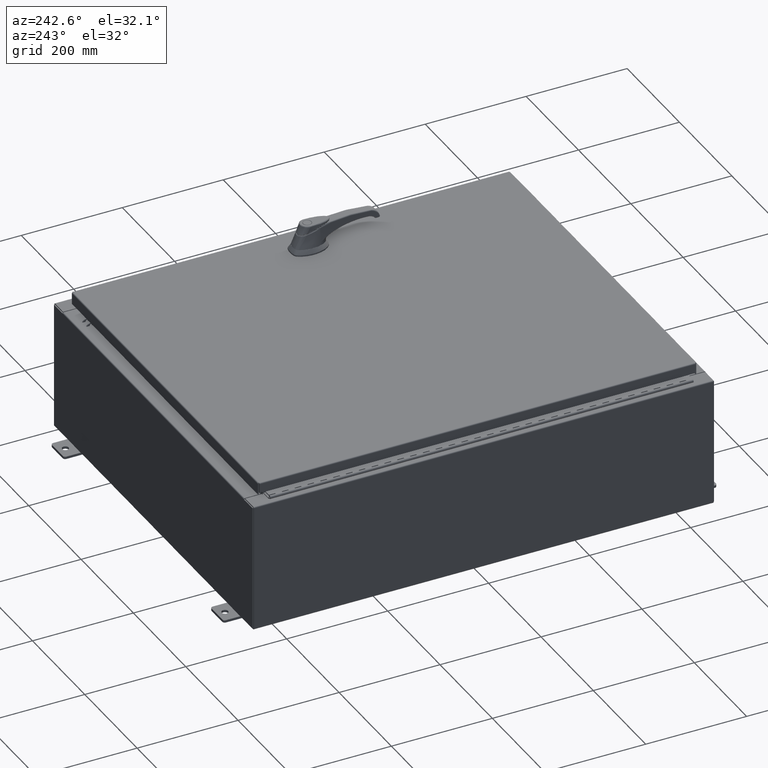
[diagram: clean part render]
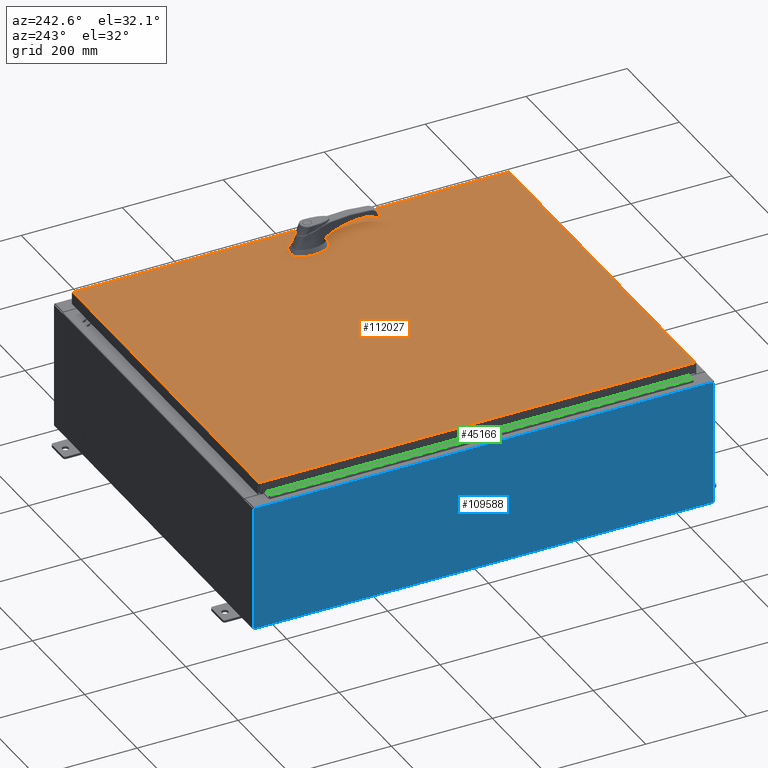
[diagram: same view with three faces highlighted in distinct colors, each labeled with its STEP entity id]
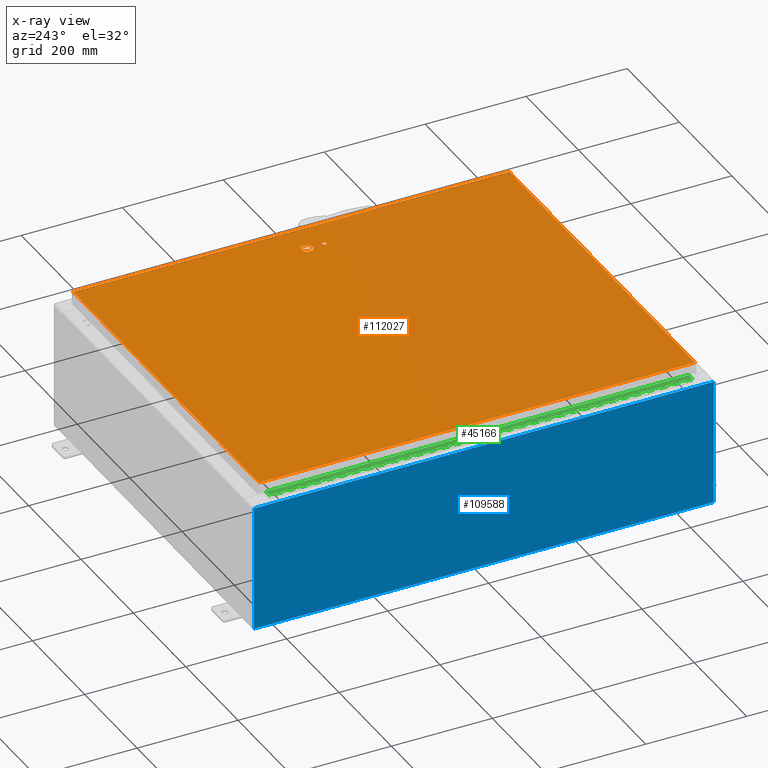
[diagram: x-ray of the same camera — body ghosted, the three highlighted faces saturated]
A machine part, auxiliary view with three faces highlighted in distinct colors.
The next image is the same camera in x-ray (body ghosted, the three faces saturated) — at least one of them is partly hidden behind the body in this view.
Their STEP definitions:

[orange] entity #112027 — the highlighted planar face has unit normal (0, 0, -1).
#326 = CARTESIAN_POINT ( 'NONE',  ( -13.99030000000000700, 17.00630000000000000, -2.048885995248197400E-016 ) ) ;
#2360 = ORIENTED_EDGE ( 'NONE', *, *, #27586, .F. ) ;
#2861 = CARTESIAN_POINT ( 'NONE',  ( 11.57799999999999400, 0.0000000000000000000, 0.0000000000000000000 ) ) ;
#4474 = CIRCLE ( 'NONE', #124366, 0.1715000000000011500 ) ;
#6822 = DIRECTION ( 'NONE',  ( 1.000000000000000000, 0.0000000000000000000, 0.0000000000000000000 ) ) ;
#8656 = VERTEX_POINT ( 'NONE', #69377 ) ;
#9676 = LINE ( 'NONE', #73200, #80130 ) ;
#9885 = CARTESIAN_POINT ( 'NONE',  ( 13.99029999999999200, -17.00630000000000000, -2.048885995248197400E-016 ) ) ;
#10312 = DIRECTION ( 'NONE',  ( 0.0000000000000000000, 1.000000000000000000, 0.0000000000000000000 ) ) ;
#10826 = CARTESIAN_POINT ( 'NONE',  ( 11.98099999999992200, -0.2002273707563079800, 0.0000000000000000000 ) ) ;
#12413 = VERTEX_POINT ( 'NONE', #93908 ) ;
#12524 = DIRECTION ( 'NONE',  ( 1.000000000000000000, 0.0000000000000000000, 0.0000000000000000000 ) ) ;
#14505 = CARTESIAN_POINT ( 'NONE',  ( 11.40649999999999200, -1.338000000000000100, 0.0000000000000000000 ) ) ;
#15035 = CARTESIAN_POINT ( 'NONE',  ( 11.77822737075630300, 0.4029999999999252000, 0.0000000000000000000 ) ) ;
#15441 = VERTEX_POINT ( 'NONE', #122699 ) ;
#16059 = VECTOR ( 'NONE', #119126, 39.37007874015748100 ) ;
#16664 = DIRECTION ( 'NONE',  ( 0.0000000000000000000, -1.000000000000000000, 0.0000000000000000000 ) ) ;
#16838 = VECTOR ( 'NONE', #90443, 39.37007874015748100 ) ;
#18944 = CARTESIAN_POINT ( 'NONE',  ( 11.57799999999999400, 0.0000000000000000000, 0.0000000000000000000 ) ) ;
#18988 = DIRECTION ( 'NONE',  ( -1.000000000000000000, 0.0000000000000000000, -0.0000000000000000000 ) ) ;
#20001 = CARTESIAN_POINT ( 'NONE',  ( 0.0000000000000000000, -0.4029999999999252000, 0.0000000000000000000 ) ) ;
#21149 = AXIS2_PLACEMENT_3D ( 'NONE', #55844, #122988, #65478 ) ;
#25038 = EDGE_CURVE ( 'NONE', #50668, #87937, #33493, .T. ) ;
#25652 = VERTEX_POINT ( 'NONE', #15035 ) ;
#26259 = ORIENTED_EDGE ( 'NONE', *, *, #53626, .F. ) ;
#27586 = EDGE_CURVE ( 'NONE', #25652, #82773, #93298, .T. ) ;
#27631 = EDGE_LOOP ( 'NONE', ( #96566, #75794 ) ) ;
#28561 = DIRECTION ( 'NONE',  ( 1.000000000000000000, 0.0000000000000000000, 0.0000000000000000000 ) ) ;
#32417 = CARTESIAN_POINT ( 'NONE',  ( -13.99030000000000700, 17.00630000000000000, -2.048885995248197400E-016 ) ) ;
#33493 = LINE ( 'NONE', #112643, #103998 ) ;
#34356 = VERTEX_POINT ( 'NONE', #80883 ) ;
#35776 = DIRECTION ( 'NONE',  ( -0.0000000000000000000, 0.0000000000000000000, 1.000000000000000000 ) ) ;
#36188 = EDGE_CURVE ( 'NONE', #87937, #8656, #79781, .T. ) ;
#39107 = VECTOR ( 'NONE', #58515, 39.37007874015748100 ) ;
#39516 = EDGE_CURVE ( 'NONE', #80863, #111823, #61265, .T. ) ;
#39667 = LINE ( 'NONE', #9885, #110153 ) ;
#39895 = EDGE_CURVE ( 'NONE', #12413, #77905, #65683, .T. ) ;
#40749 = ORIENTED_EDGE ( 'NONE', *, *, #25038, .T. ) ;
#41983 = VERTEX_POINT ( 'NONE', #10826 ) ;
#42649 = CARTESIAN_POINT ( 'NONE',  ( 0.0000000000000000000, 0.4029999999999252000, 0.0000000000000000000 ) ) ;
#43662 = DIRECTION ( 'NONE',  ( -0.0000000000000000000, 0.0000000000000000000, 1.000000000000000000 ) ) ;
#45202 = FACE_BOUND ( 'NONE', #27631, .T. ) ;
#46331 = EDGE_CURVE ( 'NONE', #77905, #12413, #4474, .T. ) ;
#49844 = EDGE_LOOP ( 'NONE', ( #110811, #88502, #40749, #111055 ) ) ;
#50668 = VERTEX_POINT ( 'NONE', #89121 ) ;
#51158 = CIRCLE ( 'NONE', #105441, 0.4499999999999168000 ) ;
#51960 = CARTESIAN_POINT ( 'NONE',  ( 11.98099999999992000, 6.538620706741751200E-014, 0.0000000000000000000 ) ) ;
#53626 = EDGE_CURVE ( 'NONE', #111823, #34356, #65061, .T. ) ;
#55844 = CARTESIAN_POINT ( 'NONE',  ( 11.57799999999999400, -1.338000000000000100, 0.0000000000000000000 ) ) ;
#58515 = DIRECTION ( 'NONE',  ( 1.000000000000000000, 0.0000000000000000000, 0.0000000000000000000 ) ) ;
#61265 = LINE ( 'NONE', #112231, #83761 ) ;
#63191 = EDGE_CURVE ( 'NONE', #15441, #41983, #122812, .T. ) ;
#64201 = DIRECTION ( 'NONE',  ( -0.0000000000000000000, 0.0000000000000000000, 1.000000000000000000 ) ) ;
#64996 = AXIS2_PLACEMENT_3D ( 'NONE', #66709, #113731, #18988 ) ;
#65061 = CIRCLE ( 'NONE', #100455, 0.4499999999999168000 ) ;
#65478 = DIRECTION ( 'NONE',  ( 1.000000000000000000, 0.0000000000000000000, 0.0000000000000000000 ) ) ;
#65614 = ORIENTED_EDGE ( 'NONE', *, *, #39516, .F. ) ;
#65683 = CIRCLE ( 'NONE', #21149, 0.1715000000000011500 ) ;
#65805 = VERTEX_POINT ( 'NONE', #73764 ) ;
#66709 = CARTESIAN_POINT ( 'NONE',  ( 0.0000000000000000000, 0.0000000000000000000, 0.0000000000000000000 ) ) ;
#66989 = LINE ( 'NONE', #51960, #16059 ) ;
#67584 = LINE ( 'NONE', #20001, #39107 ) ;
#68364 = ORIENTED_EDGE ( 'NONE', *, *, #81924, .T. ) ;
#69377 = CARTESIAN_POINT ( 'NONE',  ( -13.99030000000000700, -17.00630000000000000, -2.048885995248197400E-016 ) ) ;
#69897 = DIRECTION ( 'NONE',  ( -0.0000000000000000000, 0.0000000000000000000, 1.000000000000000000 ) ) ;
#70776 = VECTOR ( 'NONE', #78260, 39.37007874015748100 ) ;
#71265 = AXIS2_PLACEMENT_3D ( 'NONE', #101095, #43662, #110773 ) ;
#73200 = CARTESIAN_POINT ( 'NONE',  ( -13.99030000000000700, -17.00630000000000000, -2.048885995248197400E-016 ) ) ;
#73764 = CARTESIAN_POINT ( 'NONE',  ( 11.98099999999992000, 0.2002273707563075900, 0.0000000000000000000 ) ) ;
#75478 = EDGE_LOOP ( 'NONE', ( #68364, #90321, #96394, #26259, #65614, #80506, #2360, #90259 ) ) ;
#75749 = VERTEX_POINT ( 'NONE', #95860 ) ;
#75794 = ORIENTED_EDGE ( 'NONE', *, *, #46331, .F. ) ;
#77905 = VERTEX_POINT ( 'NONE', #14505 ) ;
#78260 = DIRECTION ( 'NONE',  ( 0.0000000000000000000, -1.000000000000000000, 0.0000000000000000000 ) ) ;
#79781 = LINE ( 'NONE', #326, #70776 ) ;
#80130 = VECTOR ( 'NONE', #82822, 39.37007874015748100 ) ;
#80506 = ORIENTED_EDGE ( 'NONE', *, *, #113747, .F. ) ;
#80863 = VERTEX_POINT ( 'NONE', #116378 ) ;
#80883 = CARTESIAN_POINT ( 'NONE',  ( 11.37777262924368300, -0.4029999999999252000, 0.0000000000000000000 ) ) ;
#81924 = EDGE_CURVE ( 'NONE', #65805, #41983, #66989, .T. ) ;
#82773 = VERTEX_POINT ( 'NONE', #103634 ) ;
#82822 = DIRECTION ( 'NONE',  ( 1.000000000000000000, -0.0000000000000000000, -0.0000000000000000000 ) ) ;
#83761 = VECTOR ( 'NONE', #16664, 39.37007874015748100 ) ;
#84112 = DIRECTION ( 'NONE',  ( -1.000000000000000000, -0.0000000000000000000, -0.0000000000000000000 ) ) ;
#84515 = EDGE_CURVE ( 'NONE', #8656, #75749, #9676, .T. ) ;
#85992 = DIRECTION ( 'NONE',  ( -0.0000000000000000000, 0.0000000000000000000, 1.000000000000000000 ) ) ;
#87623 = AXIS2_PLACEMENT_3D ( 'NONE', #18944, #85992, #28561 ) ;
#87937 = VERTEX_POINT ( 'NONE', #32417 ) ;
#88502 = ORIENTED_EDGE ( 'NONE', *, *, #107270, .T. ) ;
#89121 = CARTESIAN_POINT ( 'NONE',  ( 13.99029999999999200, 17.00630000000000300, -1.297627796990525000E-015 ) ) ;
#90259 = ORIENTED_EDGE ( 'NONE', *, *, #122554, .F. ) ;
#90321 = ORIENTED_EDGE ( 'NONE', *, *, #63191, .F. ) ;
#90443 = DIRECTION ( 'NONE',  ( -1.000000000000000000, 0.0000000000000000000, 0.0000000000000000000 ) ) ;
#92337 = CARTESIAN_POINT ( 'NONE',  ( 11.17500000000006600, -0.2002273707563079800, 0.0000000000000000000 ) ) ;
#93188 = FACE_OUTER_BOUND ( 'NONE', #49844, .T. ) ;
#93193 = CARTESIAN_POINT ( 'NONE',  ( 11.57799999999999400, 0.0000000000000000000, 0.0000000000000000000 ) ) ;
#93298 = LINE ( 'NONE', #42649, #16838 ) ;
#93908 = CARTESIAN_POINT ( 'NONE',  ( 11.74949999999999400, -1.338000000000000100, 0.0000000000000000000 ) ) ;
#95860 = CARTESIAN_POINT ( 'NONE',  ( 13.99029999999999200, -17.00630000000000000, -2.048885995248197400E-016 ) ) ;
#96394 = ORIENTED_EDGE ( 'NONE', *, *, #112954, .F. ) ;
#96566 = ORIENTED_EDGE ( 'NONE', *, *, #39895, .F. ) ;
#100455 = AXIS2_PLACEMENT_3D ( 'NONE', #93193, #35776, #102840 ) ;
#101095 = CARTESIAN_POINT ( 'NONE',  ( 11.57799999999999400, 0.0000000000000000000, 0.0000000000000000000 ) ) ;
#102840 = DIRECTION ( 'NONE',  ( 1.000000000000000000, 0.0000000000000000000, 0.0000000000000000000 ) ) ;
#103634 = CARTESIAN_POINT ( 'NONE',  ( 11.37777262924368300, 0.4029999999999252000, 0.0000000000000000000 ) ) ;
#103998 = VECTOR ( 'NONE', #84112, 39.37007874015748100 ) ;
#105441 = AXIS2_PLACEMENT_3D ( 'NONE', #2861, #69897, #12524 ) ;
#106452 = CIRCLE ( 'NONE', #87623, 0.4499999999999168000 ) ;
#107270 = EDGE_CURVE ( 'NONE', #75749, #50668, #39667, .T. ) ;
#110153 = VECTOR ( 'NONE', #10312, 39.37007874015748100 ) ;
#110773 = DIRECTION ( 'NONE',  ( 1.000000000000000000, 0.0000000000000000000, 0.0000000000000000000 ) ) ;
#110811 = ORIENTED_EDGE ( 'NONE', *, *, #84515, .T. ) ;
#111055 = ORIENTED_EDGE ( 'NONE', *, *, #36188, .T. ) ;
#111823 = VERTEX_POINT ( 'NONE', #92337 ) ;
#112027 = ADVANCED_FACE ( 'NONE', ( #45202, #93188, #118792 ), #124224, .F. ) ;
#112231 = CARTESIAN_POINT ( 'NONE',  ( 11.17500000000006600, 0.0000000000000000000, 0.0000000000000000000 ) ) ;
#112643 = CARTESIAN_POINT ( 'NONE',  ( 13.99029999999999200, 17.00630000000000300, -1.297627796990525000E-015 ) ) ;
#112954 = EDGE_CURVE ( 'NONE', #34356, #15441, #67584, .T. ) ;
#113731 = DIRECTION ( 'NONE',  ( 0.0000000000000000000, 0.0000000000000000000, -1.000000000000000000 ) ) ;
#113747 = EDGE_CURVE ( 'NONE', #82773, #80863, #106452, .T. ) ;
#116378 = CARTESIAN_POINT ( 'NONE',  ( 11.17500000000006600, 0.2002273707563079800, 0.0000000000000000000 ) ) ;
#118792 = FACE_BOUND ( 'NONE', #75478, .T. ) ;
#119126 = DIRECTION ( 'NONE',  ( 5.457491617345625800E-015, -1.000000000000000000, 0.0000000000000000000 ) ) ;
#121691 = CARTESIAN_POINT ( 'NONE',  ( 11.57799999999999400, -1.338000000000000100, 0.0000000000000000000 ) ) ;
#122554 = EDGE_CURVE ( 'NONE', #65805, #25652, #51158, .T. ) ;
#122699 = CARTESIAN_POINT ( 'NONE',  ( 11.77822737075630300, -0.4029999999999252000, 0.0000000000000000000 ) ) ;
#122812 = CIRCLE ( 'NONE', #71265, 0.4499999999999168000 ) ;
#122988 = DIRECTION ( 'NONE',  ( -0.0000000000000000000, 0.0000000000000000000, 1.000000000000000000 ) ) ;
#124224 = PLANE ( 'NONE',  #64996 ) ;
#124366 = AXIS2_PLACEMENT_3D ( 'NONE', #121691, #64201, #6822 ) ;

[blue] entity #109588 — the highlighted planar face has unit normal (1, 0, 0).
#1316 = VERTEX_POINT ( 'NONE', #72064 ) ;
#3851 = VERTEX_POINT ( 'NONE', #79773 ) ;
#5238 = EDGE_LOOP ( 'NONE', ( #7644, #104029, #121164, #106799 ) ) ;
#7644 = ORIENTED_EDGE ( 'NONE', *, *, #18777, .T. ) ;
#9209 = LINE ( 'NONE', #53783, #57174 ) ;
#9364 = CARTESIAN_POINT ( 'NONE',  ( -15.00000000000003700, -17.92530000000000000, 9.837599999999998300 ) ) ;
#13362 = PLANE ( 'NONE',  #19164 ) ;
#14460 = VECTOR ( 'NONE', #116438, 39.37007874015748100 ) ;
#16091 = VERTEX_POINT ( 'NONE', #25165 ) ;
#17910 = VECTOR ( 'NONE', #18574, 39.37007874015748100 ) ;
#18574 = DIRECTION ( 'NONE',  ( 3.523082860860888200E-015, 0.0000000000000000000, -1.000000000000000000 ) ) ;
#18777 = EDGE_CURVE ( 'NONE', #67290, #1316, #9209, .T. ) ;
#19164 = AXIS2_PLACEMENT_3D ( 'NONE', #41825, #22987, #90012 ) ;
#20947 = LINE ( 'NONE', #56677, #17910 ) ;
#22987 = DIRECTION ( 'NONE',  ( 1.000000000000000000, 0.0000000000000000000, 3.523082860860887800E-015 ) ) ;
#25165 = CARTESIAN_POINT ( 'NONE',  ( -15.00000000000000400, 17.92530000000000000, 0.01299999999999984300 ) ) ;
#28695 = DIRECTION ( 'NONE',  ( -3.523082860860888200E-015, 0.0000000000000000000, 1.000000000000000000 ) ) ;
#41825 = CARTESIAN_POINT ( 'NONE',  ( -15.00000000000000400, 0.0000000000000000000, -5.310705656892490100E-014 ) ) ;
#44150 = DIRECTION ( 'NONE',  ( 0.0000000000000000000, 1.000000000000000000, 0.0000000000000000000 ) ) ;
#51592 = LINE ( 'NONE', #114659, #74099 ) ;
#53783 = CARTESIAN_POINT ( 'NONE',  ( -15.00000000000003700, -17.92530000000000000, 9.837599999999998300 ) ) ;
#56677 = CARTESIAN_POINT ( 'NONE',  ( -15.00000000000000400, 17.92530000000000000, -5.310705656892490100E-014 ) ) ;
#57174 = VECTOR ( 'NONE', #44150, 39.37007874015748100 ) ;
#65382 = LINE ( 'NONE', #87901, #14460 ) ;
#67290 = VERTEX_POINT ( 'NONE', #9364 ) ;
#69259 = EDGE_CURVE ( 'NONE', #3851, #16091, #65382, .T. ) ;
#72064 = CARTESIAN_POINT ( 'NONE',  ( -15.00000000000003700, 17.92530000000000000, 9.837599999999998300 ) ) ;
#72918 = EDGE_CURVE ( 'NONE', #3851, #67290, #51592, .T. ) ;
#74099 = VECTOR ( 'NONE', #28695, 39.37007874015748100 ) ;
#79773 = CARTESIAN_POINT ( 'NONE',  ( -15.00000000000000400, -17.92530000000000000, 0.01299999999999984700 ) ) ;
#87901 = CARTESIAN_POINT ( 'NONE',  ( -15.00000000000000400, 17.92530000000000000, 0.01299999999999984700 ) ) ;
#90012 = DIRECTION ( 'NONE',  ( 3.523082860860887800E-015, 0.0000000000000000000, -1.000000000000000000 ) ) ;
#102278 = EDGE_CURVE ( 'NONE', #1316, #16091, #20947, .T. ) ;
#102314 = FACE_OUTER_BOUND ( 'NONE', #5238, .T. ) ;
#104029 = ORIENTED_EDGE ( 'NONE', *, *, #102278, .T. ) ;
#106799 = ORIENTED_EDGE ( 'NONE', *, *, #72918, .T. ) ;
#109588 = ADVANCED_FACE ( 'NONE', ( #102314 ), #13362, .F. ) ;
#114659 = CARTESIAN_POINT ( 'NONE',  ( -15.00000000000000400, -17.92530000000000000, -5.310705656892490100E-014 ) ) ;
#116438 = DIRECTION ( 'NONE',  ( -0.0000000000000000000, 1.000000000000000000, -0.0000000000000000000 ) ) ;
#121164 = ORIENTED_EDGE ( 'NONE', *, *, #69259, .F. ) ;

[green] entity #45166 — the highlighted planar face has unit normal (-0, -0, 1).
#11 = CARTESIAN_POINT ( 'NONE',  ( -0.6869999999999973900, 0.8004999999999995500, -14.49999999999999800 ) ) ;
#27 = EDGE_CURVE ( 'NONE', #50083, #121375, #31953, .T. ) ;
#327 = CARTESIAN_POINT ( 'NONE',  ( -0.6869999999999978300, 0.6754999999999996600, -33.00000000000000000 ) ) ;
#407 = EDGE_CURVE ( 'NONE', #105948, #106045, #58895, .T. ) ;
#658 = CARTESIAN_POINT ( 'NONE',  ( -0.6869999999999982800, 0.5504999999999997700, -8.500000000000000000 ) ) ;
#909 = ORIENTED_EDGE ( 'NONE', *, *, #40488, .F. ) ;
#933 = CARTESIAN_POINT ( 'NONE',  ( -0.6869999999999982800, 0.5504999999999997700, -29.50000000000000000 ) ) ;
#961 = VERTEX_POINT ( 'NONE', #90370 ) ;
#973 = EDGE_CURVE ( 'NONE', #22894, #29149, #105321, .T. ) ;
#1050 = CARTESIAN_POINT ( 'NONE',  ( -0.6869999999999973900, 0.8004999999999995500, -32.00000000000000000 ) ) ;
#1177 = LINE ( 'NONE', #19378, #23684 ) ;
#1196 = DIRECTION ( 'NONE',  ( -3.389037039080723100E-015, -1.000000000000000000, 0.0000000000000000000 ) ) ;
#1263 = VECTOR ( 'NONE', #76127, 39.37007874015748100 ) ;
#1780 = VERTEX_POINT ( 'NONE', #52780 ) ;
#1905 = VECTOR ( 'NONE', #58453, 39.37007874015748100 ) ;
#2005 = ORIENTED_EDGE ( 'NONE', *, *, #22514, .F. ) ;
#2051 = LINE ( 'NONE', #43756, #27500 ) ;
#2075 = ORIENTED_EDGE ( 'NONE', *, *, #27, .F. ) ;
#2135 = ORIENTED_EDGE ( 'NONE', *, *, #70384, .T. ) ;
#2285 = EDGE_CURVE ( 'NONE', #28045, #119756, #120182, .T. ) ;
#2517 = LINE ( 'NONE', #83047, #24984 ) ;
#2608 = VECTOR ( 'NONE', #80713, 39.37007874015748100 ) ;
#2621 = CARTESIAN_POINT ( 'NONE',  ( -0.6869999999999982800, 0.5504999999999997700, -21.50000000000000400 ) ) ;
#2632 = VERTEX_POINT ( 'NONE', #35326 ) ;
#2654 = EDGE_CURVE ( 'NONE', #8357, #86300, #3126, .T. ) ;
#3010 = VERTEX_POINT ( 'NONE', #93510 ) ;
#3112 = ORIENTED_EDGE ( 'NONE', *, *, #40849, .F. ) ;
#3126 = LINE ( 'NONE', #116218, #25598 ) ;
#3290 = VERTEX_POINT ( 'NONE', #29361 ) ;
#3427 = EDGE_CURVE ( 'NONE', #42284, #88855, #104964, .T. ) ;
#3441 = VECTOR ( 'NONE', #43589, 39.37007874015748100 ) ;
#3498 = DIRECTION ( 'NONE',  ( 0.0000000000000000000, -0.0000000000000000000, -1.000000000000000000 ) ) ;
#3761 = VERTEX_POINT ( 'NONE', #96520 ) ;
#3806 = CARTESIAN_POINT ( 'NONE',  ( -0.6869999999999982800, 0.5504999999999997700, -32.00000000000000000 ) ) ;
#3964 = VERTEX_POINT ( 'NONE', #66644 ) ;
#3988 = ORIENTED_EDGE ( 'NONE', *, *, #50917, .F. ) ;
#4071 = ORIENTED_EDGE ( 'NONE', *, *, #46870, .F. ) ;
#4175 = CARTESIAN_POINT ( 'NONE',  ( -0.6869999999999982800, 0.5504999999999997700, -0.5000000000000000000 ) ) ;
#4188 = ORIENTED_EDGE ( 'NONE', *, *, #117787, .T. ) ;
#4243 = LINE ( 'NONE', #10217, #26686 ) ;
#4293 = EDGE_CURVE ( 'NONE', #74049, #110867, #56826, .T. ) ;
#4426 = ORIENTED_EDGE ( 'NONE', *, *, #82987, .F. ) ;
#4506 = LINE ( 'NONE', #98864, #23976 ) ;
#4547 = ORIENTED_EDGE ( 'NONE', *, *, #105287, .T. ) ;
#4673 = VERTEX_POINT ( 'NONE', #55648 ) ;
#4727 = VECTOR ( 'NONE', #9672, 39.37007874015748100 ) ;
#4869 = DIRECTION ( 'NONE',  ( 3.389037039080723100E-015, 1.000000000000000000, -0.0000000000000000000 ) ) ;
#4920 = VECTOR ( 'NONE', #119350, 39.37007874015748100 ) ;
#5365 = CARTESIAN_POINT ( 'NONE',  ( -0.6869999999999982800, 0.5504999999999997700, -18.50000000000000000 ) ) ;
#5367 = ORIENTED_EDGE ( 'NONE', *, *, #45024, .F. ) ;
#5386 = DIRECTION ( 'NONE',  ( -3.389037039080723100E-015, -1.000000000000000000, 0.0000000000000000000 ) ) ;
#5396 = VERTEX_POINT ( 'NONE', #38878 ) ;
#5446 = DIRECTION ( 'NONE',  ( 0.0000000000000000000, 0.0000000000000000000, 1.000000000000000000 ) ) ;
#5637 = VECTOR ( 'NONE', #35782, 39.37007874015748100 ) ;
#5768 = EDGE_CURVE ( 'NONE', #93139, #58374, #19401, .T. ) ;
#5839 = VERTEX_POINT ( 'NONE', #108986 ) ;
#5888 = VERTEX_POINT ( 'NONE', #104392 ) ;
#6045 = CARTESIAN_POINT ( 'NONE',  ( -0.6869999999999973900, 0.8004999999999995500, -22.50000000000000000 ) ) ;
#6221 = DIRECTION ( 'NONE',  ( 0.0000000000000000000, 0.0000000000000000000, 1.000000000000000000 ) ) ;
#6624 = CARTESIAN_POINT ( 'NONE',  ( -0.6869999999999982800, 0.5504999999999997700, -23.50000000000000000 ) ) ;
#6846 = EDGE_CURVE ( 'NONE', #106045, #27056, #97178, .T. ) ;
#7139 = DIRECTION ( 'NONE',  ( 3.389037039080723100E-015, 1.000000000000000000, -0.0000000000000000000 ) ) ;
#7286 = LINE ( 'NONE', #37960, #1263 ) ;
#7441 = VERTEX_POINT ( 'NONE', #26795 ) ;
#7505 = CARTESIAN_POINT ( 'NONE',  ( -0.6869999999999978300, 0.6754999999999996600, -33.00000000000000000 ) ) ;
#7504 = DIRECTION ( 'NONE',  ( 0.0000000000000000000, -0.0000000000000000000, -1.000000000000000000 ) ) ;
#7709 = VECTOR ( 'NONE', #57009, 39.37007874015748100 ) ;
#7724 = LINE ( 'NONE', #106582, #55673 ) ;
#7874 = LINE ( 'NONE', #39751, #106865 ) ;
#7910 = ORIENTED_EDGE ( 'NONE', *, *, #64457, .F. ) ;
#7925 = DIRECTION ( 'NONE',  ( 3.389037039080723100E-015, 1.000000000000000000, -0.0000000000000000000 ) ) ;
#7929 = EDGE_CURVE ( 'NONE', #3010, #5396, #14572, .T. ) ;
#8138 = DIRECTION ( 'NONE',  ( -3.389037039080723100E-015, -1.000000000000000000, 0.0000000000000000000 ) ) ;
#8148 = VERTEX_POINT ( 'NONE', #43056 ) ;
#8344 = VECTOR ( 'NONE', #63010, 39.37007874015748100 ) ;
#8357 = VERTEX_POINT ( 'NONE', #66863 ) ;
#8437 = CARTESIAN_POINT ( 'NONE',  ( -0.6869999999999982800, 0.5504999999999997700, -28.00000000000000000 ) ) ;
#8585 = VERTEX_POINT ( 'NONE', #97892 ) ;
#8769 = VERTEX_POINT ( 'NONE', #117579 ) ;
#8783 = LINE ( 'NONE', #93213, #104743 ) ;
#8818 = ORIENTED_EDGE ( 'NONE', *, *, #87863, .F. ) ;
#8876 = ORIENTED_EDGE ( 'NONE', *, *, #49808, .F. ) ;
#8926 = CARTESIAN_POINT ( 'NONE',  ( -0.6869999999999978300, 0.6754999999999996600, -17.50000000000000000 ) ) ;
#9102 = LINE ( 'NONE', #25226, #108117 ) ;
#9140 = LINE ( 'NONE', #57333, #79597 ) ;
#9264 = CARTESIAN_POINT ( 'NONE',  ( -0.6869999999999982800, 0.5504999999999997700, -16.50000000000000000 ) ) ;
#9589 = CARTESIAN_POINT ( 'NONE',  ( -0.6869999999999978300, 0.6754999999999996600, -23.99999999999999600 ) ) ;
#9653 = LINE ( 'NONE', #65158, #105619 ) ;
#9672 = DIRECTION ( 'NONE',  ( -3.389037039080723100E-015, -1.000000000000000000, 0.0000000000000000000 ) ) ;
#10026 = CARTESIAN_POINT ( 'NONE',  ( -0.6869999999999978300, 0.6754999999999996600, -33.00000000000000000 ) ) ;
#10157 = VERTEX_POINT ( 'NONE', #56197 ) ;
#10172 = DIRECTION ( 'NONE',  ( 3.389037039080723100E-015, 1.000000000000000000, -0.0000000000000000000 ) ) ;
#10206 = EDGE_CURVE ( 'NONE', #35394, #103284, #37155, .T. ) ;
#10217 = CARTESIAN_POINT ( 'NONE',  ( -0.6869999999999978300, 0.6754999999999996600, -33.00000000000000000 ) ) ;
#10387 = EDGE_CURVE ( 'NONE', #34756, #121375, #79145, .T. ) ;
#10480 = CARTESIAN_POINT ( 'NONE',  ( -0.6869999999999973900, 0.8004999999999995500, -2.500000000000000000 ) ) ;
#10494 = DIRECTION ( 'NONE',  ( -3.389037039080723100E-015, -1.000000000000000000, 0.0000000000000000000 ) ) ;
#10678 = CARTESIAN_POINT ( 'NONE',  ( -0.6869999999999978300, 0.6754999999999996600, -11.50000000000000000 ) ) ;
#10745 = LINE ( 'NONE', #11, #4727 ) ;
#10850 = CARTESIAN_POINT ( 'NONE',  ( -0.6869999999999973900, 0.8004999999999995500, -17.50000000000000000 ) ) ;
#10890 = CARTESIAN_POINT ( 'NONE',  ( -0.6869999999999973900, 0.8004999999999995500, -24.99999999999999600 ) ) ;
#10959 = DIRECTION ( 'NONE',  ( 0.0000000000000000000, 0.0000000000000000000, 1.000000000000000000 ) ) ;
#11168 = ORIENTED_EDGE ( 'NONE', *, *, #93655, .T. ) ;
#11593 = VECTOR ( 'NONE', #96362, 39.37007874015748100 ) ;
#11672 = VECTOR ( 'NONE', #7504, 39.37007874015748100 ) ;
#11692 = EDGE_CURVE ( 'NONE', #36713, #3761, #48979, .T. ) ;
#11748 = LINE ( 'NONE', #67265, #88239 ) ;
#12210 = DIRECTION ( 'NONE',  ( 3.389037039080723100E-015, 1.000000000000000000, -0.0000000000000000000 ) ) ;
#12306 = CARTESIAN_POINT ( 'NONE',  ( -0.6869999999999982800, 0.5504999999999997700, -6.000000000000000900 ) ) ;
#12421 = ORIENTED_EDGE ( 'NONE', *, *, #94359, .T. ) ;
#12784 = VECTOR ( 'NONE', #49717, 39.37007874015748100 ) ;
#13207 = DIRECTION ( 'NONE',  ( 0.0000000000000000000, -0.0000000000000000000, -1.000000000000000000 ) ) ;
#13333 = EDGE_CURVE ( 'NONE', #87647, #113396, #32264, .T. ) ;
#13570 = CARTESIAN_POINT ( 'NONE',  ( -0.6869999999999978300, 0.6754999999999996600, -23.50000000000000000 ) ) ;
#13646 = LINE ( 'NONE', #70803, #61589 ) ;
#13723 = CARTESIAN_POINT ( 'NONE',  ( -0.6869999999999982800, 0.5504999999999997700, -24.50000000000000000 ) ) ;
#14250 = DIRECTION ( 'NONE',  ( 3.389037039080723100E-015, 1.000000000000000000, -0.0000000000000000000 ) ) ;
#14373 = VECTOR ( 'NONE', #15970, 39.37007874015748100 ) ;
#14524 = CARTESIAN_POINT ( 'NONE',  ( -0.6869999999999978300, 0.6754999999999996600, -25.50000000000000400 ) ) ;
#14572 = LINE ( 'NONE', #77083, #11593 ) ;
#14805 = LINE ( 'NONE', #79890, #88298 ) ;
#14923 = LINE ( 'NONE', #114089, #62871 ) ;
#14935 = EDGE_CURVE ( 'NONE', #124497, #99865, #18561, .T. ) ;
#15171 = VECTOR ( 'NONE', #7925, 39.37007874015748100 ) ;
#15252 = VECTOR ( 'NONE', #98589, 39.37007874015748100 ) ;
#15284 = CARTESIAN_POINT ( 'NONE',  ( -0.6869999999999982800, 0.5504999999999997700, -26.50000000000000400 ) ) ;
#15469 = EDGE_CURVE ( 'NONE', #104376, #43673, #42496, .T. ) ;
#15669 = VERTEX_POINT ( 'NONE', #29574 ) ;
#15796 = LINE ( 'NONE', #933, #60767 ) ;
#15970 = DIRECTION ( 'NONE',  ( 0.0000000000000000000, 0.0000000000000000000, 1.000000000000000000 ) ) ;
#16054 = EDGE_CURVE ( 'NONE', #20932, #120693, #105390, .T. ) ;
#16064 = EDGE_CURVE ( 'NONE', #57318, #30985, #79888, .T. ) ;
#16160 = DIRECTION ( 'NONE',  ( -3.389037039080723100E-015, -1.000000000000000000, 0.0000000000000000000 ) ) ;
#16344 = ORIENTED_EDGE ( 'NONE', *, *, #110243, .F. ) ;
#16487 = VERTEX_POINT ( 'NONE', #118595 ) ;
#16526 = CARTESIAN_POINT ( 'NONE',  ( -0.6869999999999978300, 0.6754999999999996600, -7.000000000000000000 ) ) ;
#16533 = CARTESIAN_POINT ( 'NONE',  ( -0.6869999999999998300, 0.07549999999999991400, -33.00000000000000000 ) ) ;
#16830 = DIRECTION ( 'NONE',  ( 0.0000000000000000000, 0.0000000000000000000, 1.000000000000000000 ) ) ;
#17079 = ORIENTED_EDGE ( 'NONE', *, *, #124221, .T. ) ;
#17387 = LINE ( 'NONE', #54459, #84817 ) ;
#17469 = LINE ( 'NONE', #43054, #62406 ) ;
#17478 = CARTESIAN_POINT ( 'NONE',  ( -0.6869999999999973900, 0.8004999999999995500, -23.50000000000000000 ) ) ;
#17701 = LINE ( 'NONE', #66184, #116729 ) ;
#17892 = LINE ( 'NONE', #10026, #65804 ) ;
#18055 = EDGE_CURVE ( 'NONE', #84822, #2632, #76795, .T. ) ;
#18071 = VECTOR ( 'NONE', #119316, 39.37007874015748100 ) ;
#18134 = CARTESIAN_POINT ( 'NONE',  ( -0.6869999999999982800, 0.5504999999999997700, -14.00000000000000000 ) ) ;
#18196 = ORIENTED_EDGE ( 'NONE', *, *, #2285, .F. ) ;
#18291 = VECTOR ( 'NONE', #51708, 39.37007874015748100 ) ;
#18357 = ORIENTED_EDGE ( 'NONE', *, *, #41562, .T. ) ;
#18440 = CARTESIAN_POINT ( 'NONE',  ( -0.6869999999999973900, 0.8004999999999995500, -23.00000000000000000 ) ) ;
#18561 = LINE ( 'NONE', #111115, #117625 ) ;
#18772 = EDGE_CURVE ( 'NONE', #119756, #87647, #37689, .T. ) ;
#18856 = VERTEX_POINT ( 'NONE', #112092 ) ;
#19048 = VECTOR ( 'NONE', #99626, 39.37007874015748100 ) ;
#19182 = VERTEX_POINT ( 'NONE', #88177 ) ;
#19321 = VECTOR ( 'NONE', #52693, 39.37007874015748100 ) ;
#19378 = CARTESIAN_POINT ( 'NONE',  ( -0.6869999999999978300, 0.6754999999999996600, -33.00000000000000000 ) ) ;
#19401 = LINE ( 'NONE', #111994, #115367 ) ;
#19402 = EDGE_CURVE ( 'NONE', #84822, #52465, #43582, .T. ) ;
#19465 = LINE ( 'NONE', #115629, #118492 ) ;
#19554 = EDGE_CURVE ( 'NONE', #30985, #18856, #9102, .T. ) ;
#19620 = DIRECTION ( 'NONE',  ( 0.0000000000000000000, -0.0000000000000000000, -1.000000000000000000 ) ) ;
#19626 = ORIENTED_EDGE ( 'NONE', *, *, #122194, .F. ) ;
#19678 = DIRECTION ( 'NONE',  ( 0.0000000000000000000, 0.0000000000000000000, 1.000000000000000000 ) ) ;
#19823 = CARTESIAN_POINT ( 'NONE',  ( -0.6869999999999978300, 0.6754999999999996600, -19.50000000000000000 ) ) ;
#20145 = DIRECTION ( 'NONE',  ( -3.389037039080723100E-015, -1.000000000000000000, 0.0000000000000000000 ) ) ;
#20297 = EDGE_CURVE ( 'NONE', #43673, #118695, #85456, .T. ) ;
#20301 = EDGE_CURVE ( 'NONE', #49290, #64471, #34434, .T. ) ;
#20374 = VERTEX_POINT ( 'NONE', #124400 ) ;
#20433 = ORIENTED_EDGE ( 'NONE', *, *, #115208, .F. ) ;
#20452 = VERTEX_POINT ( 'NONE', #76542 ) ;
#20502 = VECTOR ( 'NONE', #19620, 39.37007874015748100 ) ;
#20545 = LINE ( 'NONE', #16533, #84939 ) ;
#20880 = EDGE_CURVE ( 'NONE', #116329, #52119, #56564, .T. ) ;
#20882 = ORIENTED_EDGE ( 'NONE', *, *, #47060, .T. ) ;
#20922 = EDGE_LOOP ( 'NONE', ( #29942, #86882, #64734, #30991, #90060, #8818, #102760, #69491, #4188, #66671, #107856, #27755, #81915, #75615, #32753, #33116, #72823, #86935, #28170, #23190, #12421, #4071, #38068, #70188, #27630, #35508, #74179, #52116, #4547, #3112, #71767, #2005, #36478, #102195, #118143, #51417, #32524, #111503, #99857, #39818, #65452, #20934, #62016, #31142, #18357, #33346, #19626, #3988, #35989, #20433, #79850, #39748, #37238, #5367, #82192, #100629, #20882, #51167, #8876, #35916, #39786, #4426, #33702, #48205, #2135, #108524, #120747, #70076, #77790, #103323, #112542, #56576, #119849, #35448, #94201, #120636, #96095, #40975, #72512, #41103, #108958, #39408, #23750, #54070, #11168, #88174, #29324, #59612, #43934, #115507, #63297, #36163, #54394, #99770, #84379, #40097, #121498, #100240, #110529, #48697, #78948, #88857, #88577, #73641, #111133, #73783, #93610, #18196, #33917, #16344, #118273, #909, #17079, #41342, #7910, #59923, #112511, #87070, #87159, #111737, #116123, #120825, #109228, #101070, #68237, #90439, #35170, #43728, #111552, #80854, #46722, #84026, #80067, #2075 ) ) ;
#20932 = VERTEX_POINT ( 'NONE', #123422 ) ;
#20934 = ORIENTED_EDGE ( 'NONE', *, *, #74572, .F. ) ;
#21277 = VECTOR ( 'NONE', #73984, 39.37007874015748100 ) ;
#21397 = CARTESIAN_POINT ( 'NONE',  ( -0.6869999999999982800, 0.5504999999999997700, -6.499999999999999100 ) ) ;
#21715 = CARTESIAN_POINT ( 'NONE',  ( -0.6869999999999982800, 0.5504999999999997700, -3.500000000000000000 ) ) ;
#21843 = VECTOR ( 'NONE', #118471, 39.37007874015748100 ) ;
#22157 = LINE ( 'NONE', #80196, #28106 ) ;
#22453 = VECTOR ( 'NONE', #118943, 39.37007874015748100 ) ;
#22514 = EDGE_CURVE ( 'NONE', #42284, #8585, #87907, .T. ) ;
#22729 = DIRECTION ( 'NONE',  ( 0.0000000000000000000, -0.0000000000000000000, -1.000000000000000000 ) ) ;
#22767 = VECTOR ( 'NONE', #64882, 39.37007874015748100 ) ;
#22894 = VERTEX_POINT ( 'NONE', #113744 ) ;
#23190 = ORIENTED_EDGE ( 'NONE', *, *, #52347, .F. ) ;
#23437 = CARTESIAN_POINT ( 'NONE',  ( -0.6869999999999973900, 0.8004999999999995500, -10.50000000000000000 ) ) ;
#23511 = VECTOR ( 'NONE', #94617, 39.37007874015748100 ) ;
#23684 = VECTOR ( 'NONE', #96015, 39.37007874015748100 ) ;
#23744 = LINE ( 'NONE', #56692, #122744 ) ;
#23750 = ORIENTED_EDGE ( 'NONE', *, *, #27219, .F. ) ;
#23866 = CARTESIAN_POINT ( 'NONE',  ( -0.6869999999999982800, 0.5504999999999997700, -23.00000000000000000 ) ) ;
#23917 = LINE ( 'NONE', #104911, #65827 ) ;
#23976 = VECTOR ( 'NONE', #51047, 39.37007874015748100 ) ;
#24076 = CARTESIAN_POINT ( 'NONE',  ( -0.6869999999999982800, 0.5504999999999997700, -11.99999999999999800 ) ) ;
#24370 = CARTESIAN_POINT ( 'NONE',  ( -0.6869999999999978300, 0.6754999999999996600, -15.50000000000000000 ) ) ;
#24406 = CARTESIAN_POINT ( 'NONE',  ( -0.6869999999999982800, 0.5504999999999997700, -22.00000000000000000 ) ) ;
#24526 = VERTEX_POINT ( 'NONE', #78309 ) ;
#24708 = LINE ( 'NONE', #105870, #95140 ) ;
#24854 = DIRECTION ( 'NONE',  ( 0.0000000000000000000, 0.0000000000000000000, 1.000000000000000000 ) ) ;
#24984 = VECTOR ( 'NONE', #121246, 39.37007874015748100 ) ;
#25226 = CARTESIAN_POINT ( 'NONE',  ( -0.6869999999999973900, 0.8004999999999995500, -14.00000000000000000 ) ) ;
#25357 = CARTESIAN_POINT ( 'NONE',  ( -0.6869999999999978300, 0.6754999999999996600, -29.50000000000000000 ) ) ;
#25415 = CARTESIAN_POINT ( 'NONE',  ( -0.6869999999999978300, 0.6754999999999996600, -28.50000000000000000 ) ) ;
#25598 = VECTOR ( 'NONE', #40307, 39.37007874015748100 ) ;
#25668 = DIRECTION ( 'NONE',  ( -3.389037039080723100E-015, -1.000000000000000000, 0.0000000000000000000 ) ) ;
#25900 = DIRECTION ( 'NONE',  ( 0.0000000000000000000, -0.0000000000000000000, -1.000000000000000000 ) ) ;
#25903 = VECTOR ( 'NONE', #120774, 39.37007874015748100 ) ;
#26169 = DIRECTION ( 'NONE',  ( 0.0000000000000000000, 0.0000000000000000000, 1.000000000000000000 ) ) ;
#26175 = VERTEX_POINT ( 'NONE', #62639 ) ;
#26181 = CARTESIAN_POINT ( 'NONE',  ( -0.6869999999999973900, 0.8004999999999995500, -24.50000000000000000 ) ) ;
#26279 = EDGE_CURVE ( 'NONE', #961, #90478, #2051, .T. ) ;
#26360 = VECTOR ( 'NONE', #77183, 39.37007874015748100 ) ;
#26376 = VECTOR ( 'NONE', #10172, 39.37007874015748100 ) ;
#26507 = EDGE_CURVE ( 'NONE', #36713, #106244, #37965, .T. ) ;
#26622 = CARTESIAN_POINT ( 'NONE',  ( -0.6869999999999982800, 0.5504999999999997700, -20.50000000000000400 ) ) ;
#26686 = VECTOR ( 'NONE', #67589, 39.37007874015748100 ) ;
#26788 = CARTESIAN_POINT ( 'NONE',  ( -0.6869999999999978300, 0.6754999999999996600, -3.500000000000000000 ) ) ;
#26795 = CARTESIAN_POINT ( 'NONE',  ( -0.6869999999999978300, 0.6754999999999996600, -19.00000000000000000 ) ) ;
#26808 = CARTESIAN_POINT ( 'NONE',  ( -0.6869999999999982800, 0.5504999999999997700, -10.00000000000000000 ) ) ;
#26857 = DIRECTION ( 'NONE',  ( 3.389037039080723100E-015, 1.000000000000000000, -0.0000000000000000000 ) ) ;
#26868 = VERTEX_POINT ( 'NONE', #44009 ) ;
#26934 = LINE ( 'NONE', #108199, #35862 ) ;
#26954 = LINE ( 'NONE', #87628, #100440 ) ;
#27056 = VERTEX_POINT ( 'NONE', #26808 ) ;
#27074 = DIRECTION ( 'NONE',  ( -3.389037039080723100E-015, -1.000000000000000000, 0.0000000000000000000 ) ) ;
#27219 = EDGE_CURVE ( 'NONE', #64837, #49910, #69387, .T. ) ;
#27387 = EDGE_CURVE ( 'NONE', #89657, #64837, #37852, .T. ) ;
#27500 = VECTOR ( 'NONE', #72273, 39.37007874015748100 ) ;
#27534 = VECTOR ( 'NONE', #25668, 39.37007874015748100 ) ;
#27630 = ORIENTED_EDGE ( 'NONE', *, *, #973, .T. ) ;
#27755 = ORIENTED_EDGE ( 'NONE', *, *, #43880, .F. ) ;
#28045 = VERTEX_POINT ( 'NONE', #51512 ) ;
#28106 = VECTOR ( 'NONE', #13207, 39.37007874015748100 ) ;
#28170 = ORIENTED_EDGE ( 'NONE', *, *, #99205, .F. ) ;
#28194 = VECTOR ( 'NONE', #114552, 39.37007874015748100 ) ;
#28348 = EDGE_CURVE ( 'NONE', #57287, #88072, #48204, .T. ) ;
#28364 = CARTESIAN_POINT ( 'NONE',  ( -0.6869999999999978300, 0.6754999999999996600, -31.00000000000000000 ) ) ;
#28450 = VECTOR ( 'NONE', #10959, 39.37007874015748100 ) ;
#28607 = DIRECTION ( 'NONE',  ( 0.0000000000000000000, 0.0000000000000000000, 1.000000000000000000 ) ) ;
#28685 = EDGE_CURVE ( 'NONE', #34756, #101252, #58694, .T. ) ;
#28719 = EDGE_CURVE ( 'NONE', #64549, #5888, #10745, .T. ) ;
#28910 = CARTESIAN_POINT ( 'NONE',  ( -0.6869999999999973900, 0.8004999999999995500, -5.500000000000000000 ) ) ;
#28973 = CARTESIAN_POINT ( 'NONE',  ( -0.6869999999999973900, 0.8004999999999995500, -14.99999999999999800 ) ) ;
#29108 = LINE ( 'NONE', #91893, #77087 ) ;
#29149 = VERTEX_POINT ( 'NONE', #71481 ) ;
#29159 = CARTESIAN_POINT ( 'NONE',  ( -0.6869999999999982800, 0.5504999999999997700, -14.99999999999999800 ) ) ;
#29214 = EDGE_CURVE ( 'NONE', #82751, #74475, #79609, .T. ) ;
#29299 = CARTESIAN_POINT ( 'NONE',  ( -0.6869999999999978300, 0.6754999999999996600, -2.500000000000000000 ) ) ;
#29324 = ORIENTED_EDGE ( 'NONE', *, *, #80791, .F. ) ;
#29361 = CARTESIAN_POINT ( 'NONE',  ( -0.6869999999999982800, 0.5504999999999997700, -15.50000000000000000 ) ) ;
#29417 = VERTEX_POINT ( 'NONE', #102436 ) ;
#29574 = CARTESIAN_POINT ( 'NONE',  ( -0.6869999999999982800, 0.5504999999999997700, -11.50000000000000000 ) ) ;
#29942 = ORIENTED_EDGE ( 'NONE', *, *, #117076, .F. ) ;
#30985 = VERTEX_POINT ( 'NONE', #18134 ) ;
#30991 = ORIENTED_EDGE ( 'NONE', *, *, #53820, .F. ) ;
#31142 = ORIENTED_EDGE ( 'NONE', *, *, #32163, .F. ) ;
#31201 = LINE ( 'NONE', #83644, #53661 ) ;
#31953 = LINE ( 'NONE', #49822, #82923 ) ;
#32090 = CARTESIAN_POINT ( 'NONE',  ( -0.6869999999999982800, 0.5504999999999997700, -5.500000000000000000 ) ) ;
#32119 = DIRECTION ( 'NONE',  ( 0.0000000000000000000, -0.0000000000000000000, -1.000000000000000000 ) ) ;
#32163 = EDGE_CURVE ( 'NONE', #78148, #93139, #33797, .T. ) ;
#32164 = CARTESIAN_POINT ( 'NONE',  ( -0.6869999999999982800, 0.5504999999999997700, -27.00000000000000000 ) ) ;
#32264 = LINE ( 'NONE', #95048, #54710 ) ;
#32403 = DIRECTION ( 'NONE',  ( 0.0000000000000000000, -0.0000000000000000000, -1.000000000000000000 ) ) ;
#32443 = VERTEX_POINT ( 'NONE', #8926 ) ;
#32524 = ORIENTED_EDGE ( 'NONE', *, *, #118774, .T. ) ;
#32532 = EDGE_CURVE ( 'NONE', #44672, #19182, #15796, .T. ) ;
#32586 = VECTOR ( 'NONE', #108507, 39.37007874015748100 ) ;
#32743 = EDGE_CURVE ( 'NONE', #38051, #44672, #48745, .T. ) ;
#32753 = ORIENTED_EDGE ( 'NONE', *, *, #32532, .F. ) ;
#33116 = ORIENTED_EDGE ( 'NONE', *, *, #32743, .F. ) ;
#33271 = LINE ( 'NONE', #99147, #106810 ) ;
#33346 = ORIENTED_EDGE ( 'NONE', *, *, #49778, .F. ) ;
#33347 = LINE ( 'NONE', #1050, #1905 ) ;
#33580 = LINE ( 'NONE', #13723, #101071 ) ;
#33702 = ORIENTED_EDGE ( 'NONE', *, *, #41758, .F. ) ;
#33797 = LINE ( 'NONE', #6045, #8344 ) ;
#33884 = LINE ( 'NONE', #5365, #81879 ) ;
#33891 = CARTESIAN_POINT ( 'NONE',  ( -0.6869999999999978300, 0.6754999999999996600, -21.50000000000000400 ) ) ;
#33917 = ORIENTED_EDGE ( 'NONE', *, *, #75851, .T. ) ;
#34352 = CARTESIAN_POINT ( 'NONE',  ( -0.6869999999999973900, 0.8004999999999995500, -17.00000000000000000 ) ) ;
#34434 = LINE ( 'NONE', #102568, #56926 ) ;
#34667 = VECTOR ( 'NONE', #63438, 39.37007874015748100 ) ;
#34756 = VERTEX_POINT ( 'NONE', #89975 ) ;
#34837 = VECTOR ( 'NONE', #116104, 39.37007874015748100 ) ;
#34944 = CARTESIAN_POINT ( 'NONE',  ( -0.6869999999999978300, 0.6754999999999996600, -8.500000000000000000 ) ) ;
#35090 = CARTESIAN_POINT ( 'NONE',  ( -0.6869999999999978300, 0.6754999999999996600, -33.00000000000000000 ) ) ;
#35170 = ORIENTED_EDGE ( 'NONE', *, *, #53051, .F. ) ;
#35229 = DIRECTION ( 'NONE',  ( 3.389037039080723100E-015, 1.000000000000000000, -0.0000000000000000000 ) ) ;
#35326 = CARTESIAN_POINT ( 'NONE',  ( -0.6869999999999982800, 0.5504999999999997700, -20.50000000000000400 ) ) ;
#35340 = VERTEX_POINT ( 'NONE', #39159 ) ;
#35361 = DIRECTION ( 'NONE',  ( 0.0000000000000000000, -0.0000000000000000000, -1.000000000000000000 ) ) ;
#35394 = VERTEX_POINT ( 'NONE', #10678 ) ;
#35448 = ORIENTED_EDGE ( 'NONE', *, *, #71095, .F. ) ;
#35507 = CARTESIAN_POINT ( 'NONE',  ( -0.6869999999999982800, 0.5504999999999997700, -23.50000000000000000 ) ) ;
#35508 = ORIENTED_EDGE ( 'NONE', *, *, #71658, .F. ) ;
#35782 = DIRECTION ( 'NONE',  ( -3.389037039080723100E-015, -1.000000000000000000, 0.0000000000000000000 ) ) ;
#35806 = DIRECTION ( 'NONE',  ( 0.0000000000000000000, 0.0000000000000000000, 1.000000000000000000 ) ) ;
#35862 = VECTOR ( 'NONE', #88907, 39.37007874015748100 ) ;
#35916 = ORIENTED_EDGE ( 'NONE', *, *, #26507, .F. ) ;
#35978 = CARTESIAN_POINT ( 'NONE',  ( -0.6869999999999978300, 0.6754999999999996600, -21.00000000000000000 ) ) ;
#35989 = ORIENTED_EDGE ( 'NONE', *, *, #61027, .T. ) ;
#36065 = LINE ( 'NONE', #40076, #84087 ) ;
#36157 = CARTESIAN_POINT ( 'NONE',  ( -0.6869999999999982800, 0.5504999999999997700, -11.00000000000000000 ) ) ;
#36163 = ORIENTED_EDGE ( 'NONE', *, *, #39333, .F. ) ;
#36252 = DIRECTION ( 'NONE',  ( 0.0000000000000000000, -0.0000000000000000000, -1.000000000000000000 ) ) ;
#36478 = ORIENTED_EDGE ( 'NONE', *, *, #3427, .T. ) ;
#36528 = EDGE_CURVE ( 'NONE', #46051, #42862, #97723, .T. ) ;
#36713 = VERTEX_POINT ( 'NONE', #114646 ) ;
#36775 = CARTESIAN_POINT ( 'NONE',  ( -0.6869999999999973900, 0.8004999999999995500, -29.50000000000000000 ) ) ;
#36799 = CARTESIAN_POINT ( 'NONE',  ( -0.6869999999999973900, 0.8004999999999995500, -8.000000000000000000 ) ) ;
#37155 = LINE ( 'NONE', #56629, #59681 ) ;
#37238 = ORIENTED_EDGE ( 'NONE', *, *, #19402, .T. ) ;
#37392 = CARTESIAN_POINT ( 'NONE',  ( -0.6869999999999973900, 0.8004999999999995500, -26.50000000000000400 ) ) ;
#37652 = DIRECTION ( 'NONE',  ( 3.389037039080723100E-015, 1.000000000000000000, -0.0000000000000000000 ) ) ;
#37689 = LINE ( 'NONE', #120932, #34667 ) ;
#37817 = DIRECTION ( 'NONE',  ( -3.389037039080723100E-015, -1.000000000000000000, 0.0000000000000000000 ) ) ;
#37852 = LINE ( 'NONE', #116538, #34837 ) ;
#37870 = CARTESIAN_POINT ( 'NONE',  ( -0.6869999999999978300, 0.6754999999999996600, -24.50000000000000000 ) ) ;
#37960 = CARTESIAN_POINT ( 'NONE',  ( -0.6869999999999978300, 0.6754999999999996600, -33.00000000000000000 ) ) ;
#37965 = LINE ( 'NONE', #115422, #82951 ) ;
#38051 = VERTEX_POINT ( 'NONE', #25357 ) ;
#38068 = ORIENTED_EDGE ( 'NONE', *, *, #110406, .F. ) ;
#38125 = VECTOR ( 'NONE', #121844, 39.37007874015748100 ) ;
#38204 = CARTESIAN_POINT ( 'NONE',  ( -0.6869999999999982800, 0.5504999999999997700, -30.50000000000000400 ) ) ;
#38264 = DIRECTION ( 'NONE',  ( -3.389037039080723100E-015, -1.000000000000000000, 0.0000000000000000000 ) ) ;
#38543 = DIRECTION ( 'NONE',  ( 0.0000000000000000000, -0.0000000000000000000, -1.000000000000000000 ) ) ;
#38878 = CARTESIAN_POINT ( 'NONE',  ( -0.6869999999999978300, 0.6754999999999996600, -5.000000000000000000 ) ) ;
#38900 = PLANE ( 'NONE',  #118696 ) ;
#39048 = CARTESIAN_POINT ( 'NONE',  ( -0.6869999999999982800, 0.5504999999999997700, -32.50000000000000000 ) ) ;
#39067 = VERTEX_POINT ( 'NONE', #78314 ) ;
#39068 = DIRECTION ( 'NONE',  ( 0.0000000000000000000, -0.0000000000000000000, -1.000000000000000000 ) ) ;
#39159 = CARTESIAN_POINT ( 'NONE',  ( -0.6869999999999982800, 0.5504999999999997700, -33.00000000000000000 ) ) ;
#39333 = EDGE_CURVE ( 'NONE', #57287, #98881, #44774, .T. ) ;
#39408 = ORIENTED_EDGE ( 'NONE', *, *, #42469, .F. ) ;
#39690 = EDGE_CURVE ( 'NONE', #74493, #113396, #7286, .T. ) ;
#39748 = ORIENTED_EDGE ( 'NONE', *, *, #18055, .F. ) ;
#39751 = CARTESIAN_POINT ( 'NONE',  ( -0.6869999999999973900, 0.8004999999999995500, -31.50000000000000400 ) ) ;
#39786 = ORIENTED_EDGE ( 'NONE', *, *, #11692, .T. ) ;
#39818 = ORIENTED_EDGE ( 'NONE', *, *, #15469, .F. ) ;
#40075 = EDGE_CURVE ( 'NONE', #120084, #103284, #110723, .T. ) ;
#40076 = CARTESIAN_POINT ( 'NONE',  ( -0.6869999999999973900, 0.8004999999999995500, -1.000000000000000000 ) ) ;
#40084 = CARTESIAN_POINT ( 'NONE',  ( -0.6869999999999973900, 0.8004999999999995500, -2.999999999999999600 ) ) ;
#40097 = ORIENTED_EDGE ( 'NONE', *, *, #407, .F. ) ;
#40147 = LINE ( 'NONE', #112709, #11672 ) ;
#40307 = DIRECTION ( 'NONE',  ( 0.0000000000000000000, 0.0000000000000000000, 1.000000000000000000 ) ) ;
#40488 = EDGE_CURVE ( 'NONE', #24526, #74049, #74620, .T. ) ;
#40657 = LINE ( 'NONE', #84208, #15171 ) ;
#40733 = DIRECTION ( 'NONE',  ( 0.0000000000000000000, -0.0000000000000000000, -1.000000000000000000 ) ) ;
#40849 = EDGE_CURVE ( 'NONE', #80396, #92992, #76068, .T. ) ;
#40975 = ORIENTED_EDGE ( 'NONE', *, *, #19554, .F. ) ;
#41049 = VECTOR ( 'NONE', #50717, 39.37007874015748100 ) ;
#41103 = ORIENTED_EDGE ( 'NONE', *, *, #102292, .F. ) ;
#41294 = LINE ( 'NONE', #60962, #21843 ) ;
#41342 = ORIENTED_EDGE ( 'NONE', *, *, #7929, .F. ) ;
#41411 = CARTESIAN_POINT ( 'NONE',  ( -0.6869999999999982800, 0.5504999999999997700, -30.50000000000000400 ) ) ;
#41522 = CARTESIAN_POINT ( 'NONE',  ( -0.6869999999999978300, 0.6754999999999996600, -33.00000000000000000 ) ) ;
#41562 = EDGE_CURVE ( 'NONE', #78148, #68135, #1177, .T. ) ;
#41699 = CARTESIAN_POINT ( 'NONE',  ( -0.6869999999999978300, 0.6754999999999996600, -33.00000000000000000 ) ) ;
#41727 = CARTESIAN_POINT ( 'NONE',  ( -0.6869999999999973900, 0.8004999999999995500, -30.50000000000000400 ) ) ;
#41758 = EDGE_CURVE ( 'NONE', #87079, #106355, #40147, .T. ) ;
#42076 = VERTEX_POINT ( 'NONE', #87506 ) ;
#42164 = VERTEX_POINT ( 'NONE', #108865 ) ;
#42284 = VERTEX_POINT ( 'NONE', #14524 ) ;
#42307 = CARTESIAN_POINT ( 'NONE',  ( -0.6869999999999978300, 0.6754999999999996600, -32.00000000000000000 ) ) ;
#42400 = VERTEX_POINT ( 'NONE', #53858 ) ;
#42469 = EDGE_CURVE ( 'NONE', #49910, #86300, #100011, .T. ) ;
#42496 = LINE ( 'NONE', #17478, #112988 ) ;
#42824 = EDGE_CURVE ( 'NONE', #961, #49903, #2517, .T. ) ;
#42862 = VERTEX_POINT ( 'NONE', #103141 ) ;
#43054 = CARTESIAN_POINT ( 'NONE',  ( -0.6869999999999973900, 0.8004999999999995500, -22.00000000000000000 ) ) ;
#43056 = CARTESIAN_POINT ( 'NONE',  ( -0.6869999999999978300, 0.6754999999999996600, -2.000000000000000000 ) ) ;
#43259 = VERTEX_POINT ( 'NONE', #69130 ) ;
#43582 = LINE ( 'NONE', #72157, #117171 ) ;
#43589 = DIRECTION ( 'NONE',  ( -3.389037039080723100E-015, -1.000000000000000000, 0.0000000000000000000 ) ) ;
#43594 = LINE ( 'NONE', #39048, #88634 ) ;
#43626 = DIRECTION ( 'NONE',  ( 0.0000000000000000000, -0.0000000000000000000, -1.000000000000000000 ) ) ;
#43637 = DIRECTION ( 'NONE',  ( 0.0000000000000000000, 0.0000000000000000000, 1.000000000000000000 ) ) ;
#43641 = LINE ( 'NONE', #122894, #117242 ) ;
#43673 = VERTEX_POINT ( 'NONE', #6624 ) ;
#43728 = ORIENTED_EDGE ( 'NONE', *, *, #16054, .F. ) ;
#43756 = CARTESIAN_POINT ( 'NONE',  ( -0.6869999999999978300, 0.6754999999999996600, -33.00000000000000000 ) ) ;
#43848 = VECTOR ( 'NONE', #114854, 39.37007874015748100 ) ;
#43873 = EDGE_CURVE ( 'NONE', #109193, #124390, #33271, .T. ) ;
#43880 = EDGE_CURVE ( 'NONE', #122757, #87429, #109821, .T. ) ;
#43911 = VECTOR ( 'NONE', #22729, 39.37007874015748100 ) ;
#43934 = ORIENTED_EDGE ( 'NONE', *, *, #10206, .T. ) ;
#43938 = VECTOR ( 'NONE', #1196, 39.37007874015748100 ) ;
#43986 = CARTESIAN_POINT ( 'NONE',  ( -0.6869999999999973900, 0.8004999999999995500, -1.499999999999999800 ) ) ;
#44009 = CARTESIAN_POINT ( 'NONE',  ( -0.6869999999999982800, 0.5504999999999997700, -19.00000000000000000 ) ) ;
#44221 = CARTESIAN_POINT ( 'NONE',  ( -0.6869999999999973900, 0.8004999999999995500, -16.00000000000000000 ) ) ;
#44413 = VERTEX_POINT ( 'NONE', #122761 ) ;
#44590 = CARTESIAN_POINT ( 'NONE',  ( -0.6869999999999973900, 0.8004999999999995500, -8.500000000000000000 ) ) ;
#44653 = VERTEX_POINT ( 'NONE', #107586 ) ;
#44672 = VERTEX_POINT ( 'NONE', #79458 ) ;
#44691 = CARTESIAN_POINT ( 'NONE',  ( -0.6869999999999982800, 0.5504999999999997700, -5.500000000000000000 ) ) ;
#44762 = CARTESIAN_POINT ( 'NONE',  ( -0.6869999999999982800, 0.5504999999999997700, -18.50000000000000000 ) ) ;
#44774 = LINE ( 'NONE', #23437, #19321 ) ;
#44847 = VERTEX_POINT ( 'NONE', #103468 ) ;
#44851 = EDGE_CURVE ( 'NONE', #27056, #88072, #40657, .T. ) ;
#45024 = EDGE_CURVE ( 'NONE', #1780, #52465, #9140, .T. ) ;
#45136 = DIRECTION ( 'NONE',  ( -3.389037039080723100E-015, -1.000000000000000000, 0.0000000000000000000 ) ) ;
#45166 = ADVANCED_FACE ( 'NONE', ( #54080 ), #38900, .T. ) ;
#45483 = LINE ( 'NONE', #37392, #93461 ) ;
#45562 = DIRECTION ( 'NONE',  ( 0.0000000000000000000, -0.0000000000000000000, -1.000000000000000000 ) ) ;
#45770 = LINE ( 'NONE', #35090, #87796 ) ;
#45885 = DIRECTION ( 'NONE',  ( 0.0000000000000000000, -0.0000000000000000000, -1.000000000000000000 ) ) ;
#45928 = VECTOR ( 'NONE', #115644, 39.37007874015748100 ) ;
#46051 = VERTEX_POINT ( 'NONE', #70147 ) ;
#46179 = LINE ( 'NONE', #10480, #119766 ) ;
#46367 = CARTESIAN_POINT ( 'NONE',  ( -0.6869999999999982800, 0.5504999999999997700, -22.50000000000000000 ) ) ;
#46412 = DIRECTION ( 'NONE',  ( -3.389037039080723100E-015, -1.000000000000000000, 0.0000000000000000000 ) ) ;
#46426 = CARTESIAN_POINT ( 'NONE',  ( -0.6869999999999982800, 0.5504999999999997700, -9.500000000000000000 ) ) ;
#46494 = EDGE_CURVE ( 'NONE', #26868, #7441, #14923, .T. ) ;
#46541 = CARTESIAN_POINT ( 'NONE',  ( -0.6869999999999982800, 0.5504999999999997700, -13.50000000000000000 ) ) ;
#46655 = LINE ( 'NONE', #83873, #94633 ) ;
#46717 = DIRECTION ( 'NONE',  ( 0.0000000000000000000, -0.0000000000000000000, -1.000000000000000000 ) ) ;
#46722 = ORIENTED_EDGE ( 'NONE', *, *, #57850, .F. ) ;
#46755 = LINE ( 'NONE', #99507, #18291 ) ;
#46870 = EDGE_CURVE ( 'NONE', #115609, #42164, #64318, .T. ) ;
#47034 = DIRECTION ( 'NONE',  ( -3.389037039080723100E-015, -1.000000000000000000, 0.0000000000000000000 ) ) ;
#47060 = EDGE_CURVE ( 'NONE', #49290, #7441, #122829, .T. ) ;
#47227 = EDGE_CURVE ( 'NONE', #49903, #42400, #14805, .T. ) ;
#47364 = CARTESIAN_POINT ( 'NONE',  ( -0.6869999999999973900, 0.8004999999999995500, -0.5000000000000000000 ) ) ;
#47398 = EDGE_CURVE ( 'NONE', #105948, #74475, #8783, .T. ) ;
#47632 = LINE ( 'NONE', #44221, #95620 ) ;
#47635 = VECTOR ( 'NONE', #107337, 39.37007874015748100 ) ;
#47697 = DIRECTION ( 'NONE',  ( 3.389037039080723100E-015, 1.000000000000000000, -0.0000000000000000000 ) ) ;
#47844 = DIRECTION ( 'NONE',  ( 0.0000000000000000000, -0.0000000000000000000, -1.000000000000000000 ) ) ;
#48204 = LINE ( 'NONE', #7505, #22767 ) ;
#48205 = ORIENTED_EDGE ( 'NONE', *, *, #87247, .F. ) ;
#48264 = CARTESIAN_POINT ( 'NONE',  ( -0.6869999999999973900, 0.8004999999999995500, -17.99999999999999600 ) ) ;
#48362 = VECTOR ( 'NONE', #85484, 39.37007874015748100 ) ;
#48474 = CARTESIAN_POINT ( 'NONE',  ( -0.6869999999999982800, 0.5504999999999997700, -15.50000000000000000 ) ) ;
#48492 = CARTESIAN_POINT ( 'NONE',  ( -0.6869999999999978300, 0.6754999999999996600, -33.00000000000000000 ) ) ;
#48531 = DIRECTION ( 'NONE',  ( 1.000000000000000000, -3.369016658928398200E-015, 0.0000000000000000000 ) ) ;
#48669 = EDGE_CURVE ( 'NONE', #64549, #18856, #109113, .T. ) ;
#48697 = ORIENTED_EDGE ( 'NONE', *, *, #110390, .F. ) ;
#48708 = CARTESIAN_POINT ( 'NONE',  ( -0.6869999999999982800, 0.5504999999999997700, -7.499999999999999100 ) ) ;
#48745 = LINE ( 'NONE', #36775, #96724 ) ;
#48979 = LINE ( 'NONE', #94200, #23511 ) ;
#49032 = VECTOR ( 'NONE', #83206, 39.37007874015748100 ) ;
#49159 = DIRECTION ( 'NONE',  ( 3.369016658928398200E-015, 1.000000000000000000, 0.0000000000000000000 ) ) ;
#49164 = DIRECTION ( 'NONE',  ( 0.0000000000000000000, 0.0000000000000000000, 1.000000000000000000 ) ) ;
#49290 = VERTEX_POINT ( 'NONE', #19823 ) ;
#49376 = DIRECTION ( 'NONE',  ( -3.389037039080723100E-015, -1.000000000000000000, 0.0000000000000000000 ) ) ;
#49475 = CARTESIAN_POINT ( 'NONE',  ( -0.6869999999999978300, 0.6754999999999996600, -33.00000000000000000 ) ) ;
#49709 = DIRECTION ( 'NONE',  ( 3.389037039080723100E-015, 1.000000000000000000, -0.0000000000000000000 ) ) ;
#49717 = DIRECTION ( 'NONE',  ( 3.389037039080723100E-015, 1.000000000000000000, -0.0000000000000000000 ) ) ;
#49778 = EDGE_CURVE ( 'NONE', #83825, #68135, #17469, .T. ) ;
#49808 = EDGE_CURVE ( 'NONE', #106244, #26868, #33884, .T. ) ;
#49822 = CARTESIAN_POINT ( 'NONE',  ( -0.6870000000000022800, -0.6245000000000003900, 0.0000000000000000000 ) ) ;
#49903 = VERTEX_POINT ( 'NONE', #9264 ) ;
#49910 = VERTEX_POINT ( 'NONE', #114470 ) ;
#49993 = CARTESIAN_POINT ( 'NONE',  ( -0.6869999999999978300, 0.6754999999999996600, -6.000000000000000900 ) ) ;
#50083 = VERTEX_POINT ( 'NONE', #118248 ) ;
#50086 = CARTESIAN_POINT ( 'NONE',  ( -0.6869999999999973900, 0.8004999999999995500, -25.50000000000000400 ) ) ;
#50717 = DIRECTION ( 'NONE',  ( -3.389037039080723100E-015, -1.000000000000000000, 0.0000000000000000000 ) ) ;
#50917 = EDGE_CURVE ( 'NONE', #92173, #118522, #93913, .T. ) ;
#51039 = CARTESIAN_POINT ( 'NONE',  ( -0.6869999999999978300, 0.6754999999999996600, -33.00000000000000000 ) ) ;
#51047 = DIRECTION ( 'NONE',  ( 0.0000000000000000000, -0.0000000000000000000, -1.000000000000000000 ) ) ;
#51141 = DIRECTION ( 'NONE',  ( 0.0000000000000000000, 0.0000000000000000000, 1.000000000000000000 ) ) ;
#51167 = ORIENTED_EDGE ( 'NONE', *, *, #46494, .F. ) ;
#51224 = CARTESIAN_POINT ( 'NONE',  ( -0.6869999999999973900, 0.8004999999999995500, -9.500000000000000000 ) ) ;
#51284 = LINE ( 'NONE', #101053, #102261 ) ;
#51292 = VECTOR ( 'NONE', #82437, 39.37007874015748100 ) ;
#51311 = VECTOR ( 'NONE', #55071, 39.37007874015748100 ) ;
#51320 = DIRECTION ( 'NONE',  ( 0.0000000000000000000, 0.0000000000000000000, 1.000000000000000000 ) ) ;
#51417 = ORIENTED_EDGE ( 'NONE', *, *, #20880, .F. ) ;
#51438 = LINE ( 'NONE', #90708, #99453 ) ;
#51512 = CARTESIAN_POINT ( 'NONE',  ( -0.6869999999999978300, 0.6754999999999996600, -6.499999999999999100 ) ) ;
#51542 = CARTESIAN_POINT ( 'NONE',  ( -0.6869999999999978300, 0.6754999999999996600, -26.50000000000000400 ) ) ;
#51708 = DIRECTION ( 'NONE',  ( 3.389037039080723100E-015, 1.000000000000000000, -0.0000000000000000000 ) ) ;
#51839 = LINE ( 'NONE', #28973, #26360 ) ;
#51978 = LINE ( 'NONE', #93919, #99977 ) ;
#52116 = ORIENTED_EDGE ( 'NONE', *, *, #120183, .F. ) ;
#52119 = VERTEX_POINT ( 'NONE', #106107 ) ;
#52265 = LINE ( 'NONE', #64539, #103262 ) ;
#52347 = EDGE_CURVE ( 'NONE', #82427, #3964, #41294, .T. ) ;
#52357 = CARTESIAN_POINT ( 'NONE',  ( -0.6869999999999978300, 0.6754999999999996600, -2.999999999999999600 ) ) ;
#52465 = VERTEX_POINT ( 'NONE', #110834 ) ;
#52659 = CARTESIAN_POINT ( 'NONE',  ( -0.6869999999999982800, 0.5504999999999997700, -14.49999999999999800 ) ) ;
#52693 = DIRECTION ( 'NONE',  ( -3.389037039080723100E-015, -1.000000000000000000, 0.0000000000000000000 ) ) ;
#52780 = CARTESIAN_POINT ( 'NONE',  ( -0.6869999999999982800, 0.5504999999999997700, -20.00000000000000000 ) ) ;
#52914 = CARTESIAN_POINT ( 'NONE',  ( -0.6869999999999978300, 0.6754999999999996600, -14.49999999999999800 ) ) ;
#53051 = EDGE_CURVE ( 'NONE', #120693, #4673, #78661, .T. ) ;
#53102 = CARTESIAN_POINT ( 'NONE',  ( -0.6869999999999973900, 0.8004999999999995500, -7.499999999999999100 ) ) ;
#53504 = CARTESIAN_POINT ( 'NONE',  ( -0.6869999999999973900, 0.8004999999999995500, -20.50000000000000400 ) ) ;
#53644 = DIRECTION ( 'NONE',  ( 0.0000000000000000000, -0.0000000000000000000, -1.000000000000000000 ) ) ;
#53661 = VECTOR ( 'NONE', #45885, 39.37007874015748100 ) ;
#53725 = CARTESIAN_POINT ( 'NONE',  ( -0.6869999999999978300, 0.6754999999999996600, -10.00000000000000000 ) ) ;
#53820 = EDGE_CURVE ( 'NONE', #20452, #10157, #104051, .T. ) ;
#53858 = CARTESIAN_POINT ( 'NONE',  ( -0.6869999999999982800, 0.5504999999999997700, -17.00000000000000000 ) ) ;
#54070 = ORIENTED_EDGE ( 'NONE', *, *, #27387, .F. ) ;
#54077 = CARTESIAN_POINT ( 'NONE',  ( -0.6869999999999978300, 0.6754999999999996600, -33.00000000000000000 ) ) ;
#54080 = FACE_OUTER_BOUND ( 'NONE', #20922, .T. ) ;
#54394 = ORIENTED_EDGE ( 'NONE', *, *, #28348, .T. ) ;
#54459 = CARTESIAN_POINT ( 'NONE',  ( -0.6869999999999973900, 0.8004999999999995500, -4.000000000000000000 ) ) ;
#54675 = CARTESIAN_POINT ( 'NONE',  ( -0.6869999999999978300, 0.6754999999999996600, -33.00000000000000000 ) ) ;
#54686 = DIRECTION ( 'NONE',  ( 3.369016658928398200E-015, 1.000000000000000000, 0.0000000000000000000 ) ) ;
#54710 = VECTOR ( 'NONE', #37652, 39.37007874015748100 ) ;
#55071 = DIRECTION ( 'NONE',  ( 0.0000000000000000000, 0.0000000000000000000, 1.000000000000000000 ) ) ;
#55648 = CARTESIAN_POINT ( 'NONE',  ( -0.6869999999999982800, 0.5504999999999997700, -2.000000000000000000 ) ) ;
#55673 = VECTOR ( 'NONE', #3498, 39.37007874015748100 ) ;
#55743 = VECTOR ( 'NONE', #16160, 39.37007874015748100 ) ;
#55757 = CARTESIAN_POINT ( 'NONE',  ( -0.6869999999999978300, 0.6754999999999996600, -10.50000000000000000 ) ) ;
#55785 = CARTESIAN_POINT ( 'NONE',  ( -0.6869999999999982800, 0.5504999999999997700, -21.00000000000000000 ) ) ;
#55931 = CARTESIAN_POINT ( 'NONE',  ( -0.6869999999999973900, 0.8004999999999995500, -26.00000000000000000 ) ) ;
#56123 = LINE ( 'NONE', #36799, #78660 ) ;
#56197 = CARTESIAN_POINT ( 'NONE',  ( -0.6869999999999982800, 0.5504999999999997700, -32.50000000000000000 ) ) ;
#56564 = LINE ( 'NONE', #26181, #5637 ) ;
#56576 = ORIENTED_EDGE ( 'NONE', *, *, #94779, .F. ) ;
#56629 = CARTESIAN_POINT ( 'NONE',  ( -0.6869999999999978300, 0.6754999999999996600, -33.00000000000000000 ) ) ;
#56692 = CARTESIAN_POINT ( 'NONE',  ( -0.6869999999999982800, 0.5504999999999997700, -8.500000000000000000 ) ) ;
#56826 = LINE ( 'NONE', #32090, #107889 ) ;
#56926 = VECTOR ( 'NONE', #45136, 39.37007874015748100 ) ;
#57009 = DIRECTION ( 'NONE',  ( -3.389037039080723100E-015, -1.000000000000000000, 0.0000000000000000000 ) ) ;
#57286 = CARTESIAN_POINT ( 'NONE',  ( -0.6869999999999982800, 0.5504999999999997700, -17.99999999999999600 ) ) ;
#57287 = VERTEX_POINT ( 'NONE', #55757 ) ;
#57318 = VERTEX_POINT ( 'NONE', #46541 ) ;
#57333 = CARTESIAN_POINT ( 'NONE',  ( -0.6869999999999973900, 0.8004999999999995500, -20.00000000000000000 ) ) ;
#57465 = CARTESIAN_POINT ( 'NONE',  ( -0.6869999999999978300, 0.6754999999999996600, -12.49999999999999800 ) ) ;
#57850 = EDGE_CURVE ( 'NONE', #101252, #39067, #51284, .T. ) ;
#57891 = LINE ( 'NONE', #53102, #111931 ) ;
#58374 = VERTEX_POINT ( 'NONE', #23866 ) ;
#58453 = DIRECTION ( 'NONE',  ( 3.389037039080723100E-015, 1.000000000000000000, -0.0000000000000000000 ) ) ;
#58694 = LINE ( 'NONE', #47364, #7709 ) ;
#58728 = LINE ( 'NONE', #83762, #109754 ) ;
#58841 = CARTESIAN_POINT ( 'NONE',  ( -0.6869999999999973900, 0.8004999999999995500, -21.00000000000000000 ) ) ;
#58874 = CARTESIAN_POINT ( 'NONE',  ( -0.6869999999999978300, 0.6754999999999996600, -20.50000000000000400 ) ) ;
#58895 = LINE ( 'NONE', #51224, #4920 ) ;
#59612 = ORIENTED_EDGE ( 'NONE', *, *, #92034, .F. ) ;
#59681 = VECTOR ( 'NONE', #67506, 39.37007874015748100 ) ;
#59923 = ORIENTED_EDGE ( 'NONE', *, *, #98878, .F. ) ;
#60428 = VECTOR ( 'NONE', #111099, 39.37007874015748100 ) ;
#60767 = VECTOR ( 'NONE', #39068, 39.37007874015748100 ) ;
#60962 = CARTESIAN_POINT ( 'NONE',  ( -0.6869999999999973900, 0.8004999999999995500, -28.50000000000000000 ) ) ;
#61027 = EDGE_CURVE ( 'NONE', #92173, #82190, #17892, .T. ) ;
#61282 = VERTEX_POINT ( 'NONE', #71549 ) ;
#61589 = VECTOR ( 'NONE', #80423, 39.37007874015748100 ) ;
#61632 = CARTESIAN_POINT ( 'NONE',  ( -0.6869999999999982800, 0.5504999999999997700, -1.499999999999999800 ) ) ;
#62016 = ORIENTED_EDGE ( 'NONE', *, *, #5768, .F. ) ;
#62025 = VECTOR ( 'NONE', #77909, 39.37007874015748100 ) ;
#62313 = DIRECTION ( 'NONE',  ( 0.0000000000000000000, -0.0000000000000000000, -1.000000000000000000 ) ) ;
#62341 = DIRECTION ( 'NONE',  ( 3.389037039080723100E-015, 1.000000000000000000, -0.0000000000000000000 ) ) ;
#62406 = VECTOR ( 'NONE', #62341, 39.37007874015748100 ) ;
#62639 = CARTESIAN_POINT ( 'NONE',  ( -0.6869999999999982800, 0.5504999999999997700, -2.999999999999999600 ) ) ;
#62801 = EDGE_CURVE ( 'NONE', #124390, #43259, #70329, .T. ) ;
#62871 = VECTOR ( 'NONE', #123741, 39.37007874015748100 ) ;
#63010 = DIRECTION ( 'NONE',  ( -3.389037039080723100E-015, -1.000000000000000000, 0.0000000000000000000 ) ) ;
#63137 = CARTESIAN_POINT ( 'NONE',  ( -0.6869999999999982800, 0.5504999999999997700, -2.500000000000000000 ) ) ;
#63297 = ORIENTED_EDGE ( 'NONE', *, *, #72711, .F. ) ;
#63438 = DIRECTION ( 'NONE',  ( 0.0000000000000000000, -0.0000000000000000000, -1.000000000000000000 ) ) ;
#63661 = CARTESIAN_POINT ( 'NONE',  ( -0.6869999999999978300, 0.6754999999999996600, -7.499999999999999100 ) ) ;
#63863 = DIRECTION ( 'NONE',  ( -3.389037039080723100E-015, -1.000000000000000000, 0.0000000000000000000 ) ) ;
#63917 = DIRECTION ( 'NONE',  ( -3.389037039080723100E-015, -1.000000000000000000, 0.0000000000000000000 ) ) ;
#63956 = CARTESIAN_POINT ( 'NONE',  ( -0.6869999999999982800, 0.5504999999999997700, -10.50000000000000000 ) ) ;
#63977 = CARTESIAN_POINT ( 'NONE',  ( -0.6869999999999982800, 0.5504999999999997700, -24.99999999999999600 ) ) ;
#64318 = LINE ( 'NONE', #71651, #86825 ) ;
#64332 = CARTESIAN_POINT ( 'NONE',  ( -0.6869999999999973900, 0.8004999999999995500, -12.99999999999999800 ) ) ;
#64449 = CARTESIAN_POINT ( 'NONE',  ( -0.6869999999999978300, 0.6754999999999996600, -16.00000000000000000 ) ) ;
#64457 = EDGE_CURVE ( 'NONE', #84657, #3010, #22157, .T. ) ;
#64471 = VERTEX_POINT ( 'NONE', #99497 ) ;
#64539 = CARTESIAN_POINT ( 'NONE',  ( -0.6869999999999973900, 0.8004999999999995500, -28.99999999999999600 ) ) ;
#64549 = VERTEX_POINT ( 'NONE', #52914 ) ;
#64734 = ORIENTED_EDGE ( 'NONE', *, *, #89646, .F. ) ;
#64837 = VERTEX_POINT ( 'NONE', #67093 ) ;
#64882 = DIRECTION ( 'NONE',  ( 0.0000000000000000000, 0.0000000000000000000, 1.000000000000000000 ) ) ;
#65024 = EDGE_CURVE ( 'NONE', #109193, #75468, #78980, .T. ) ;
#65158 = CARTESIAN_POINT ( 'NONE',  ( -0.6869999999999973900, 0.8004999999999995500, -27.50000000000000000 ) ) ;
#65452 = ORIENTED_EDGE ( 'NONE', *, *, #75515, .T. ) ;
#65507 = CARTESIAN_POINT ( 'NONE',  ( -0.6869999999999973900, 0.8004999999999995500, -21.50000000000000400 ) ) ;
#65804 = VECTOR ( 'NONE', #19678, 39.37007874015748100 ) ;
#65827 = VECTOR ( 'NONE', #37817, 39.37007874015748100 ) ;
#66147 = VECTOR ( 'NONE', #116036, 39.37007874015748100 ) ;
#66184 = CARTESIAN_POINT ( 'NONE',  ( -0.6869999999999973900, 0.8004999999999995500, -23.99999999999999600 ) ) ;
#66488 = EDGE_CURVE ( 'NONE', #38051, #115426, #45770, .T. ) ;
#66644 = CARTESIAN_POINT ( 'NONE',  ( -0.6869999999999982800, 0.5504999999999997700, -28.50000000000000000 ) ) ;
#66671 = ORIENTED_EDGE ( 'NONE', *, *, #94390, .F. ) ;
#66719 = VERTEX_POINT ( 'NONE', #28364 ) ;
#66846 = EDGE_CURVE ( 'NONE', #26175, #75468, #89229, .T. ) ;
#66863 = CARTESIAN_POINT ( 'NONE',  ( -0.6869999999999978300, 0.6754999999999996600, -13.50000000000000000 ) ) ;
#67013 = CARTESIAN_POINT ( 'NONE',  ( -0.6869999999999978300, 0.6754999999999996600, -9.500000000000000000 ) ) ;
#67043 = CARTESIAN_POINT ( 'NONE',  ( -0.6869999999999973900, 0.8004999999999995500, -6.499999999999999100 ) ) ;
#67093 = CARTESIAN_POINT ( 'NONE',  ( -0.6869999999999982800, 0.5504999999999997700, -12.49999999999999800 ) ) ;
#67265 = CARTESIAN_POINT ( 'NONE',  ( -0.6869999999999982800, 0.5504999999999997700, -11.50000000000000000 ) ) ;
#67401 = EDGE_CURVE ( 'NONE', #20932, #67721, #4243, .T. ) ;
#67438 = CARTESIAN_POINT ( 'NONE',  ( -0.6869999999999978300, 0.6754999999999996600, -1.000000000000000000 ) ) ;
#67506 = DIRECTION ( 'NONE',  ( 0.0000000000000000000, 0.0000000000000000000, 1.000000000000000000 ) ) ;
#67586 = EDGE_CURVE ( 'NONE', #118695, #84297, #17701, .T. ) ;
#67589 = DIRECTION ( 'NONE',  ( 0.0000000000000000000, 0.0000000000000000000, 1.000000000000000000 ) ) ;
#67707 = DIRECTION ( 'NONE',  ( 0.0000000000000000000, 0.0000000000000000000, 1.000000000000000000 ) ) ;
#67721 = VERTEX_POINT ( 'NONE', #67438 ) ;
#67978 = LINE ( 'NONE', #63137, #81435 ) ;
#68135 = VERTEX_POINT ( 'NONE', #108667 ) ;
#68237 = ORIENTED_EDGE ( 'NONE', *, *, #118899, .T. ) ;
#68652 = VERTEX_POINT ( 'NONE', #42307 ) ;
#69095 = EDGE_CURVE ( 'NONE', #3290, #20374, #96938, .T. ) ;
#69122 = VECTOR ( 'NONE', #96818, 39.37007874015748100 ) ;
#69130 = CARTESIAN_POINT ( 'NONE',  ( -0.6869999999999982800, 0.5504999999999997700, -4.000000000000000000 ) ) ;
#69387 = LINE ( 'NONE', #105179, #43848 ) ;
#69447 = LINE ( 'NONE', #98981, #43911 ) ;
#69491 = ORIENTED_EDGE ( 'NONE', *, *, #121104, .F. ) ;
#69847 = VERTEX_POINT ( 'NONE', #49993 ) ;
#70076 = ORIENTED_EDGE ( 'NONE', *, *, #42824, .F. ) ;
#70147 = CARTESIAN_POINT ( 'NONE',  ( -0.6869999999999978300, 0.6754999999999996600, -4.500000000000000000 ) ) ;
#70155 = VERTEX_POINT ( 'NONE', #24370 ) ;
#70188 = ORIENTED_EDGE ( 'NONE', *, *, #72753, .F. ) ;
#70329 = LINE ( 'NONE', #93654, #121369 ) ;
#70384 = EDGE_CURVE ( 'NONE', #32443, #44413, #122491, .T. ) ;
#70472 = CARTESIAN_POINT ( 'NONE',  ( -0.6869999999999978300, 0.6754999999999996600, -31.50000000000000400 ) ) ;
#70756 = EDGE_CURVE ( 'NONE', #2632, #123528, #107436, .T. ) ;
#70803 = CARTESIAN_POINT ( 'NONE',  ( -0.6869999999999973900, 0.8004999999999995500, -15.50000000000000000 ) ) ;
#71095 = EDGE_CURVE ( 'NONE', #80490, #16487, #51839, .T. ) ;
#71481 = CARTESIAN_POINT ( 'NONE',  ( -0.6869999999999978300, 0.6754999999999996600, -27.00000000000000000 ) ) ;
#71549 = CARTESIAN_POINT ( 'NONE',  ( -0.6869999999999982800, 0.5504999999999997700, -2.500000000000000000 ) ) ;
#71651 = CARTESIAN_POINT ( 'NONE',  ( -0.6869999999999973900, 0.8004999999999995500, -28.00000000000000000 ) ) ;
#71658 = EDGE_CURVE ( 'NONE', #89069, #29149, #101272, .T. ) ;
#71767 = ORIENTED_EDGE ( 'NONE', *, *, #94196, .F. ) ;
#72157 = CARTESIAN_POINT ( 'NONE',  ( -0.6869999999999978300, 0.6754999999999996600, -33.00000000000000000 ) ) ;
#72273 = DIRECTION ( 'NONE',  ( 0.0000000000000000000, 0.0000000000000000000, 1.000000000000000000 ) ) ;
#72362 = EDGE_CURVE ( 'NONE', #29417, #44847, #56123, .T. ) ;
#72512 = ORIENTED_EDGE ( 'NONE', *, *, #16064, .F. ) ;
#72711 = EDGE_CURVE ( 'NONE', #98881, #120084, #86130, .T. ) ;
#72753 = EDGE_CURVE ( 'NONE', #22894, #8769, #9653, .T. ) ;
#72782 = DIRECTION ( 'NONE',  ( 0.0000000000000000000, -0.0000000000000000000, -1.000000000000000000 ) ) ;
#72823 = ORIENTED_EDGE ( 'NONE', *, *, #66488, .T. ) ;
#72891 = VECTOR ( 'NONE', #46717, 39.37007874015748100 ) ;
#73641 = ORIENTED_EDGE ( 'NONE', *, *, #101376, .F. ) ;
#73783 = ORIENTED_EDGE ( 'NONE', *, *, #13333, .F. ) ;
#73871 = EDGE_CURVE ( 'NONE', #5888, #80490, #116021, .T. ) ;
#73984 = DIRECTION ( 'NONE',  ( 0.0000000000000000000, 0.0000000000000000000, 1.000000000000000000 ) ) ;
#74014 = EDGE_CURVE ( 'NONE', #61282, #26175, #67978, .T. ) ;
#74049 = VERTEX_POINT ( 'NONE', #44691 ) ;
#74179 = ORIENTED_EDGE ( 'NONE', *, *, #108779, .F. ) ;
#74475 = VERTEX_POINT ( 'NONE', #121159 ) ;
#74493 = VERTEX_POINT ( 'NONE', #63661 ) ;
#74572 = EDGE_CURVE ( 'NONE', #58374, #110978, #96350, .T. ) ;
#74620 = LINE ( 'NONE', #28910, #94084 ) ;
#74653 = VERTEX_POINT ( 'NONE', #29299 ) ;
#74824 = DIRECTION ( 'NONE',  ( -3.389037039080723100E-015, -1.000000000000000000, 0.0000000000000000000 ) ) ;
#75468 = VERTEX_POINT ( 'NONE', #52357 ) ;
#75515 = EDGE_CURVE ( 'NONE', #104376, #110978, #58728, .T. ) ;
#75615 = ORIENTED_EDGE ( 'NONE', *, *, #116874, .F. ) ;
#75656 = VECTOR ( 'NONE', #40733, 39.37007874015748100 ) ;
#75839 = DIRECTION ( 'NONE',  ( 3.389037039080723100E-015, 1.000000000000000000, -0.0000000000000000000 ) ) ;
#75851 = EDGE_CURVE ( 'NONE', #28045, #69847, #91660, .T. ) ;
#75976 = VECTOR ( 'NONE', #51141, 39.37007874015748100 ) ;
#76068 = LINE ( 'NONE', #55931, #2608 ) ;
#76127 = DIRECTION ( 'NONE',  ( 0.0000000000000000000, 0.0000000000000000000, 1.000000000000000000 ) ) ;
#76542 = CARTESIAN_POINT ( 'NONE',  ( -0.6869999999999978300, 0.6754999999999996600, -32.50000000000000000 ) ) ;
#76795 = LINE ( 'NONE', #53504, #51292 ) ;
#76918 = DIRECTION ( 'NONE',  ( 0.0000000000000000000, -0.0000000000000000000, -1.000000000000000000 ) ) ;
#77083 = CARTESIAN_POINT ( 'NONE',  ( -0.6869999999999973900, 0.8004999999999995500, -5.000000000000000000 ) ) ;
#77087 = VECTOR ( 'NONE', #24854, 39.37007874015748100 ) ;
#77183 = DIRECTION ( 'NONE',  ( 3.389037039080723100E-015, 1.000000000000000000, -0.0000000000000000000 ) ) ;
#77379 = EDGE_CURVE ( 'NONE', #119846, #44653, #26954, .T. ) ;
#77462 = VECTOR ( 'NONE', #8138, 39.37007874015748100 ) ;
#77790 = ORIENTED_EDGE ( 'NONE', *, *, #26279, .T. ) ;
#77872 = EDGE_CURVE ( 'NONE', #70155, #16487, #98920, .T. ) ;
#77909 = DIRECTION ( 'NONE',  ( 3.389037039080723100E-015, 1.000000000000000000, -0.0000000000000000000 ) ) ;
#78107 = DIRECTION ( 'NONE',  ( 3.389037039080723100E-015, 1.000000000000000000, -0.0000000000000000000 ) ) ;
#78148 = VERTEX_POINT ( 'NONE', #116285 ) ;
#78309 = CARTESIAN_POINT ( 'NONE',  ( -0.6869999999999978300, 0.6754999999999996600, -5.500000000000000000 ) ) ;
#78310 = CARTESIAN_POINT ( 'NONE',  ( -0.6869999999999982800, 0.5504999999999997700, -9.500000000000000000 ) ) ;
#78314 = CARTESIAN_POINT ( 'NONE',  ( -0.6869999999999982800, 0.5504999999999997700, -1.000000000000000000 ) ) ;
#78660 = VECTOR ( 'NONE', #123217, 39.37007874015748100 ) ;
#78661 = LINE ( 'NONE', #79254, #75656 ) ;
#78798 = CARTESIAN_POINT ( 'NONE',  ( -0.6869999999999978300, 0.6754999999999996600, -33.00000000000000000 ) ) ;
#78948 = ORIENTED_EDGE ( 'NONE', *, *, #91505, .T. ) ;
#78980 = LINE ( 'NONE', #41522, #75976 ) ;
#79010 = DIRECTION ( 'NONE',  ( -3.389037039080723100E-015, -1.000000000000000000, 0.0000000000000000000 ) ) ;
#79145 = LINE ( 'NONE', #78798, #47635 ) ;
#79174 = VECTOR ( 'NONE', #54686, 39.37007874015748100 ) ;
#79254 = CARTESIAN_POINT ( 'NONE',  ( -0.6869999999999982800, 0.5504999999999997700, -1.499999999999999800 ) ) ;
#79458 = CARTESIAN_POINT ( 'NONE',  ( -0.6869999999999982800, 0.5504999999999997700, -29.50000000000000000 ) ) ;
#79597 = VECTOR ( 'NONE', #47697, 39.37007874015748100 ) ;
#79609 = LINE ( 'NONE', #119749, #99124 ) ;
#79850 = ORIENTED_EDGE ( 'NONE', *, *, #70756, .F. ) ;
#79888 = LINE ( 'NONE', #91780, #25903 ) ;
#79890 = CARTESIAN_POINT ( 'NONE',  ( -0.6869999999999982800, 0.5504999999999997700, -16.50000000000000000 ) ) ;
#80067 = ORIENTED_EDGE ( 'NONE', *, *, #10387, .T. ) ;
#80196 = CARTESIAN_POINT ( 'NONE',  ( -0.6869999999999982800, 0.5504999999999997700, -4.500000000000000000 ) ) ;
#80369 = LINE ( 'NONE', #48264, #26376 ) ;
#80396 = VERTEX_POINT ( 'NONE', #84924 ) ;
#80417 = LINE ( 'NONE', #95683, #99908 ) ;
#80423 = DIRECTION ( 'NONE',  ( -3.389037039080723100E-015, -1.000000000000000000, 0.0000000000000000000 ) ) ;
#80490 = VERTEX_POINT ( 'NONE', #29159 ) ;
#80710 = CARTESIAN_POINT ( 'NONE',  ( -0.6869999999999978300, 0.6754999999999996600, -33.00000000000000000 ) ) ;
#80713 = DIRECTION ( 'NONE',  ( 3.389037039080723100E-015, 1.000000000000000000, -0.0000000000000000000 ) ) ;
#80791 = EDGE_CURVE ( 'NONE', #15669, #119846, #11748, .T. ) ;
#80854 = ORIENTED_EDGE ( 'NONE', *, *, #112983, .F. ) ;
#81435 = VECTOR ( 'NONE', #72782, 39.37007874015748100 ) ;
#81531 = EDGE_CURVE ( 'NONE', #87429, #5839, #91064, .T. ) ;
#81879 = VECTOR ( 'NONE', #121058, 39.37007874015748100 ) ;
#81915 = ORIENTED_EDGE ( 'NONE', *, *, #113899, .T. ) ;
#82190 = VERTEX_POINT ( 'NONE', #35978 ) ;
#82192 = ORIENTED_EDGE ( 'NONE', *, *, #120566, .F. ) ;
#82427 = VERTEX_POINT ( 'NONE', #25415 ) ;
#82437 = DIRECTION ( 'NONE',  ( -3.389037039080723100E-015, -1.000000000000000000, 0.0000000000000000000 ) ) ;
#82751 = VERTEX_POINT ( 'NONE', #93971 ) ;
#82923 = VECTOR ( 'NONE', #49159, 39.37007874015748100 ) ;
#82951 = VECTOR ( 'NONE', #38264, 39.37007874015748100 ) ;
#82987 = EDGE_CURVE ( 'NONE', #106355, #3761, #80369, .T. ) ;
#83047 = CARTESIAN_POINT ( 'NONE',  ( -0.6869999999999973900, 0.8004999999999995500, -16.50000000000000000 ) ) ;
#83131 = VERTEX_POINT ( 'NONE', #70472 ) ;
#83147 = CARTESIAN_POINT ( 'NONE',  ( -0.6869999999999982800, 0.5504999999999997700, -27.50000000000000000 ) ) ;
#83206 = DIRECTION ( 'NONE',  ( 3.389037039080723100E-015, 1.000000000000000000, -0.0000000000000000000 ) ) ;
#83239 = CARTESIAN_POINT ( 'NONE',  ( -0.6870000000000022800, -0.6245000000000003900, -33.00000000000000000 ) ) ;
#83283 = CARTESIAN_POINT ( 'NONE',  ( -0.6869999999999982800, 0.5504999999999997700, -21.50000000000000400 ) ) ;
#83549 = VERTEX_POINT ( 'NONE', #94494 ) ;
#83644 = CARTESIAN_POINT ( 'NONE',  ( -0.6869999999999982800, 0.5504999999999997700, -28.50000000000000000 ) ) ;
#83762 = CARTESIAN_POINT ( 'NONE',  ( -0.6869999999999978300, 0.6754999999999996600, -33.00000000000000000 ) ) ;
#83764 = CARTESIAN_POINT ( 'NONE',  ( -0.6869999999999978300, 0.6754999999999996600, -33.00000000000000000 ) ) ;
#83825 = VERTEX_POINT ( 'NONE', #24406 ) ;
#83873 = CARTESIAN_POINT ( 'NONE',  ( -0.6869999999999978300, 0.6754999999999996600, -33.00000000000000000 ) ) ;
#84026 = ORIENTED_EDGE ( 'NONE', *, *, #28685, .F. ) ;
#84087 = VECTOR ( 'NONE', #49709, 39.37007874015748100 ) ;
#84208 = CARTESIAN_POINT ( 'NONE',  ( -0.6869999999999973900, 0.8004999999999995500, -10.00000000000000000 ) ) ;
#84297 = VERTEX_POINT ( 'NONE', #9589 ) ;
#84379 = ORIENTED_EDGE ( 'NONE', *, *, #6846, .F. ) ;
#84462 = CARTESIAN_POINT ( 'NONE',  ( -0.6869999999999978300, 0.6754999999999996600, -30.50000000000000400 ) ) ;
#84657 = VERTEX_POINT ( 'NONE', #112605 ) ;
#84817 = VECTOR ( 'NONE', #111956, 39.37007874015748100 ) ;
#84822 = VERTEX_POINT ( 'NONE', #58874 ) ;
#84924 = CARTESIAN_POINT ( 'NONE',  ( -0.6869999999999982800, 0.5504999999999997700, -26.00000000000000000 ) ) ;
#84939 = VECTOR ( 'NONE', #26169, 39.37007874015748100 ) ;
#85456 = LINE ( 'NONE', #35507, #107990 ) ;
#85484 = DIRECTION ( 'NONE',  ( 3.389037039080723100E-015, 1.000000000000000000, -0.0000000000000000000 ) ) ;
#85629 = CARTESIAN_POINT ( 'NONE',  ( -0.6869999999999973900, 0.8004999999999995500, -11.00000000000000000 ) ) ;
#86130 = LINE ( 'NONE', #63956, #38125 ) ;
#86153 = EDGE_CURVE ( 'NONE', #52119, #100768, #33580, .T. ) ;
#86300 = VERTEX_POINT ( 'NONE', #112151 ) ;
#86825 = VECTOR ( 'NONE', #14250, 39.37007874015748100 ) ;
#86882 = ORIENTED_EDGE ( 'NONE', *, *, #99201, .T. ) ;
#86935 = ORIENTED_EDGE ( 'NONE', *, *, #102836, .F. ) ;
#87070 = ORIENTED_EDGE ( 'NONE', *, *, #117806, .F. ) ;
#87079 = VERTEX_POINT ( 'NONE', #114801 ) ;
#87159 = ORIENTED_EDGE ( 'NONE', *, *, #62801, .F. ) ;
#87247 = EDGE_CURVE ( 'NONE', #32443, #87079, #94930, .T. ) ;
#87429 = VERTEX_POINT ( 'NONE', #41411 ) ;
#87506 = CARTESIAN_POINT ( 'NONE',  ( -0.6869999999999982800, 0.5504999999999997700, -28.99999999999999600 ) ) ;
#87628 = CARTESIAN_POINT ( 'NONE',  ( -0.6869999999999973900, 0.8004999999999995500, -11.99999999999999800 ) ) ;
#87647 = VERTEX_POINT ( 'NONE', #93668 ) ;
#87796 = VECTOR ( 'NONE', #6221, 39.37007874015748100 ) ;
#87863 = EDGE_CURVE ( 'NONE', #99865, #68652, #33347, .T. ) ;
#87907 = LINE ( 'NONE', #50086, #107381 ) ;
#87958 = CARTESIAN_POINT ( 'NONE',  ( -0.6869999999999978300, 0.6754999999999996600, -24.99999999999999600 ) ) ;
#88072 = VERTEX_POINT ( 'NONE', #53725 ) ;
#88109 = VECTOR ( 'NONE', #47844, 39.37007874015748100 ) ;
#88174 = ORIENTED_EDGE ( 'NONE', *, *, #77379, .F. ) ;
#88177 = CARTESIAN_POINT ( 'NONE',  ( -0.6869999999999982800, 0.5504999999999997700, -29.99999999999999600 ) ) ;
#88239 = VECTOR ( 'NONE', #76918, 39.37007874015748100 ) ;
#88243 = VECTOR ( 'NONE', #78107, 39.37007874015748100 ) ;
#88298 = VECTOR ( 'NONE', #32119, 39.37007874015748100 ) ;
#88396 = VECTOR ( 'NONE', #28607, 39.37007874015748100 ) ;
#88577 = ORIENTED_EDGE ( 'NONE', *, *, #95846, .F. ) ;
#88634 = VECTOR ( 'NONE', #106104, 39.37007874015748100 ) ;
#88784 = VECTOR ( 'NONE', #35361, 39.37007874015748100 ) ;
#88855 = VERTEX_POINT ( 'NONE', #87958 ) ;
#88857 = ORIENTED_EDGE ( 'NONE', *, *, #72362, .F. ) ;
#88907 = DIRECTION ( 'NONE',  ( 0.0000000000000000000, 0.0000000000000000000, 1.000000000000000000 ) ) ;
#89069 = VERTEX_POINT ( 'NONE', #32164 ) ;
#89229 = LINE ( 'NONE', #40084, #12784 ) ;
#89646 = EDGE_CURVE ( 'NONE', #10157, #35340, #43594, .T. ) ;
#89657 = VERTEX_POINT ( 'NONE', #57465 ) ;
#89975 = CARTESIAN_POINT ( 'NONE',  ( -0.6869999999999978300, 0.6754999999999996600, -0.5000000000000000000 ) ) ;
#89988 = CARTESIAN_POINT ( 'NONE',  ( -0.6869999999999973900, 0.8004999999999995500, -4.500000000000000000 ) ) ;
#90060 = ORIENTED_EDGE ( 'NONE', *, *, #102309, .T. ) ;
#90370 = CARTESIAN_POINT ( 'NONE',  ( -0.6869999999999978300, 0.6754999999999996600, -16.50000000000000000 ) ) ;
#90439 = ORIENTED_EDGE ( 'NONE', *, *, #113170, .F. ) ;
#90478 = VERTEX_POINT ( 'NONE', #64449 ) ;
#90708 = CARTESIAN_POINT ( 'NONE',  ( -0.6869999999999982800, 0.5504999999999997700, -26.50000000000000400 ) ) ;
#90787 = DIRECTION ( 'NONE',  ( 0.0000000000000000000, -0.0000000000000000000, -1.000000000000000000 ) ) ;
#90816 = CARTESIAN_POINT ( 'NONE',  ( -0.6869999999999978300, 0.6754999999999996600, 0.0000000000000000000 ) ) ;
#91064 = LINE ( 'NONE', #38204, #88109 ) ;
#91505 = EDGE_CURVE ( 'NONE', #116964, #44847, #29108, .T. ) ;
#91539 = CARTESIAN_POINT ( 'NONE',  ( -0.6869999999999978300, 0.6754999999999996600, -33.00000000000000000 ) ) ;
#91660 = LINE ( 'NONE', #106352, #66147 ) ;
#91737 = VECTOR ( 'NONE', #63863, 39.37007874015748100 ) ;
#91766 = VECTOR ( 'NONE', #101174, 39.37007874015748100 ) ;
#91780 = CARTESIAN_POINT ( 'NONE',  ( -0.6869999999999982800, 0.5504999999999997700, -13.50000000000000000 ) ) ;
#91893 = CARTESIAN_POINT ( 'NONE',  ( -0.6869999999999978300, 0.6754999999999996600, -33.00000000000000000 ) ) ;
#92034 = EDGE_CURVE ( 'NONE', #35394, #15669, #94979, .T. ) ;
#92147 = VECTOR ( 'NONE', #51320, 39.37007874015748100 ) ;
#92173 = VERTEX_POINT ( 'NONE', #33891 ) ;
#92712 = CARTESIAN_POINT ( 'NONE',  ( -0.6869999999999998300, 0.07549999999999991400, -33.00000000000000000 ) ) ;
#92992 = VERTEX_POINT ( 'NONE', #102157 ) ;
#93139 = VERTEX_POINT ( 'NONE', #46367 ) ;
#93213 = CARTESIAN_POINT ( 'NONE',  ( -0.6869999999999978300, 0.6754999999999996600, -33.00000000000000000 ) ) ;
#93461 = VECTOR ( 'NONE', #47034, 39.37007874015748100 ) ;
#93510 = CARTESIAN_POINT ( 'NONE',  ( -0.6869999999999982800, 0.5504999999999997700, -5.000000000000000000 ) ) ;
#93610 = ORIENTED_EDGE ( 'NONE', *, *, #18772, .F. ) ;
#93654 = CARTESIAN_POINT ( 'NONE',  ( -0.6869999999999982800, 0.5504999999999997700, -3.500000000000000000 ) ) ;
#93655 = EDGE_CURVE ( 'NONE', #89657, #44653, #117351, .T. ) ;
#93668 = CARTESIAN_POINT ( 'NONE',  ( -0.6869999999999982800, 0.5504999999999997700, -7.000000000000000000 ) ) ;
#93913 = LINE ( 'NONE', #65507, #77462 ) ;
#93919 = CARTESIAN_POINT ( 'NONE',  ( -0.6869999999999973900, 0.8004999999999995500, -29.99999999999999600 ) ) ;
#93971 = CARTESIAN_POINT ( 'NONE',  ( -0.6869999999999982800, 0.5504999999999997700, -9.000000000000000000 ) ) ;
#94084 = VECTOR ( 'NONE', #10494, 39.37007874015748100 ) ;
#94169 = LINE ( 'NONE', #58841, #88243 ) ;
#94196 = EDGE_CURVE ( 'NONE', #8585, #80396, #7724, .T. ) ;
#94200 = CARTESIAN_POINT ( 'NONE',  ( -0.6869999999999978300, 0.6754999999999996600, -33.00000000000000000 ) ) ;
#94201 = ORIENTED_EDGE ( 'NONE', *, *, #73871, .F. ) ;
#94359 = EDGE_CURVE ( 'NONE', #82427, #42164, #46655, .T. ) ;
#94390 = EDGE_CURVE ( 'NONE', #5839, #66719, #43641, .T. ) ;
#94494 = CARTESIAN_POINT ( 'NONE',  ( -0.6869999999999978300, 0.6754999999999996600, -29.99999999999999600 ) ) ;
#94511 = LINE ( 'NONE', #109644, #18071 ) ;
#94617 = DIRECTION ( 'NONE',  ( 0.0000000000000000000, 0.0000000000000000000, 1.000000000000000000 ) ) ;
#94633 = VECTOR ( 'NONE', #16830, 39.37007874015748100 ) ;
#94779 = EDGE_CURVE ( 'NONE', #70155, #3290, #13646, .T. ) ;
#94930 = LINE ( 'NONE', #10850, #43938 ) ;
#94946 = CARTESIAN_POINT ( 'NONE',  ( -0.6869999999999982800, 0.5504999999999997700, -23.99999999999999600 ) ) ;
#94979 = LINE ( 'NONE', #98529, #41049 ) ;
#95048 = CARTESIAN_POINT ( 'NONE',  ( -0.6869999999999973900, 0.8004999999999995500, -7.000000000000000000 ) ) ;
#95140 = VECTOR ( 'NONE', #67707, 39.37007874015748100 ) ;
#95620 = VECTOR ( 'NONE', #111335, 39.37007874015748100 ) ;
#95683 = CARTESIAN_POINT ( 'NONE',  ( -0.6869999999999978300, 0.6754999999999996600, -33.00000000000000000 ) ) ;
#95846 = EDGE_CURVE ( 'NONE', #120314, #29417, #4506, .T. ) ;
#96015 = DIRECTION ( 'NONE',  ( 0.0000000000000000000, 0.0000000000000000000, 1.000000000000000000 ) ) ;
#96095 = ORIENTED_EDGE ( 'NONE', *, *, #48669, .T. ) ;
#96317 = VERTEX_POINT ( 'NONE', #658 ) ;
#96350 = LINE ( 'NONE', #18440, #48362 ) ;
#96362 = DIRECTION ( 'NONE',  ( 3.389037039080723100E-015, 1.000000000000000000, -0.0000000000000000000 ) ) ;
#96520 = CARTESIAN_POINT ( 'NONE',  ( -0.6869999999999978300, 0.6754999999999996600, -17.99999999999999600 ) ) ;
#96724 = VECTOR ( 'NONE', #46412, 39.37007874015748100 ) ;
#96818 = DIRECTION ( 'NONE',  ( -3.389037039080723100E-015, -1.000000000000000000, 0.0000000000000000000 ) ) ;
#96938 = LINE ( 'NONE', #48474, #20502 ) ;
#97123 = DIRECTION ( 'NONE',  ( 0.0000000000000000000, 0.0000000000000000000, 1.000000000000000000 ) ) ;
#97178 = LINE ( 'NONE', #46426, #122715 ) ;
#97530 = EDGE_CURVE ( 'NONE', #96317, #82751, #23744, .T. ) ;
#97548 = EDGE_CURVE ( 'NONE', #74653, #61282, #46179, .T. ) ;
#97723 = LINE ( 'NONE', #54675, #21277 ) ;
#97892 = CARTESIAN_POINT ( 'NONE',  ( -0.6869999999999982800, 0.5504999999999997700, -25.50000000000000400 ) ) ;
#97950 = EDGE_CURVE ( 'NONE', #20374, #90478, #47632, .T. ) ;
#98295 = VECTOR ( 'NONE', #109127, 39.37007874015748100 ) ;
#98529 = CARTESIAN_POINT ( 'NONE',  ( -0.6869999999999973900, 0.8004999999999995500, -11.50000000000000000 ) ) ;
#98589 = DIRECTION ( 'NONE',  ( 0.0000000000000000000, -0.0000000000000000000, -1.000000000000000000 ) ) ;
#98864 = CARTESIAN_POINT ( 'NONE',  ( -0.6869999999999982800, 0.5504999999999997700, -7.499999999999999100 ) ) ;
#98878 = EDGE_CURVE ( 'NONE', #46051, #84657, #118089, .T. ) ;
#98881 = VERTEX_POINT ( 'NONE', #118574 ) ;
#98920 = LINE ( 'NONE', #80710, #22453 ) ;
#98981 = CARTESIAN_POINT ( 'NONE',  ( -0.6869999999999982800, 0.5504999999999997700, -19.50000000000000000 ) ) ;
#99124 = VECTOR ( 'NONE', #4869, 39.37007874015748100 ) ;
#99147 = CARTESIAN_POINT ( 'NONE',  ( -0.6869999999999973900, 0.8004999999999995500, -3.500000000000000000 ) ) ;
#99201 = EDGE_CURVE ( 'NONE', #113550, #35340, #104682, .T. ) ;
#99205 = EDGE_CURVE ( 'NONE', #3964, #42076, #31201, .T. ) ;
#99453 = VECTOR ( 'NONE', #100339, 39.37007874015748100 ) ;
#99464 = CARTESIAN_POINT ( 'NONE',  ( -0.6869999999999973900, 0.8004999999999995500, -27.00000000000000000 ) ) ;
#99497 = CARTESIAN_POINT ( 'NONE',  ( -0.6869999999999982800, 0.5504999999999997700, -19.50000000000000000 ) ) ;
#99507 = CARTESIAN_POINT ( 'NONE',  ( -0.6869999999999973900, 0.8004999999999995500, -6.000000000000000900 ) ) ;
#99626 = DIRECTION ( 'NONE',  ( -3.389037039080723100E-015, -1.000000000000000000, 0.0000000000000000000 ) ) ;
#99770 = ORIENTED_EDGE ( 'NONE', *, *, #44851, .F. ) ;
#99857 = ORIENTED_EDGE ( 'NONE', *, *, #20297, .F. ) ;
#99865 = VERTEX_POINT ( 'NONE', #3806 ) ;
#99908 = VECTOR ( 'NONE', #49164, 39.37007874015748100 ) ;
#99977 = VECTOR ( 'NONE', #103571, 39.37007874015748100 ) ;
#100011 = LINE ( 'NONE', #64332, #49032 ) ;
#100240 = ORIENTED_EDGE ( 'NONE', *, *, #29214, .F. ) ;
#100278 = VECTOR ( 'NONE', #115626, 39.37007874015748100 ) ;
#100339 = DIRECTION ( 'NONE',  ( 0.0000000000000000000, -0.0000000000000000000, -1.000000000000000000 ) ) ;
#100440 = VECTOR ( 'NONE', #12210, 39.37007874015748100 ) ;
#100629 = ORIENTED_EDGE ( 'NONE', *, *, #20301, .F. ) ;
#100756 = LINE ( 'NONE', #44590, #91737 ) ;
#100768 = VERTEX_POINT ( 'NONE', #63977 ) ;
#101053 = CARTESIAN_POINT ( 'NONE',  ( -0.6869999999999982800, 0.5504999999999997700, -0.5000000000000000000 ) ) ;
#101070 = ORIENTED_EDGE ( 'NONE', *, *, #97548, .F. ) ;
#101071 = VECTOR ( 'NONE', #90787, 39.37007874015748100 ) ;
#101174 = DIRECTION ( 'NONE',  ( 0.0000000000000000000, 0.0000000000000000000, 1.000000000000000000 ) ) ;
#101252 = VERTEX_POINT ( 'NONE', #4175 ) ;
#101272 = LINE ( 'NONE', #99464, #98295 ) ;
#101376 = EDGE_CURVE ( 'NONE', #74493, #120314, #57891, .T. ) ;
#102157 = CARTESIAN_POINT ( 'NONE',  ( -0.6869999999999978300, 0.6754999999999996600, -26.00000000000000000 ) ) ;
#102195 = ORIENTED_EDGE ( 'NONE', *, *, #108202, .F. ) ;
#102261 = VECTOR ( 'NONE', #43626, 39.37007874015748100 ) ;
#102292 = EDGE_CURVE ( 'NONE', #8357, #57318, #23917, .T. ) ;
#102309 = EDGE_CURVE ( 'NONE', #20452, #68652, #113869, .T. ) ;
#102338 = CARTESIAN_POINT ( 'NONE',  ( -0.6869999999999973900, 0.8004999999999995500, -32.50000000000000000 ) ) ;
#102436 = CARTESIAN_POINT ( 'NONE',  ( -0.6869999999999982800, 0.5504999999999997700, -8.000000000000000000 ) ) ;
#102568 = CARTESIAN_POINT ( 'NONE',  ( -0.6869999999999973900, 0.8004999999999995500, -19.50000000000000000 ) ) ;
#102760 = ORIENTED_EDGE ( 'NONE', *, *, #14935, .F. ) ;
#102836 = EDGE_CURVE ( 'NONE', #42076, #115426, #52265, .T. ) ;
#103141 = CARTESIAN_POINT ( 'NONE',  ( -0.6869999999999978300, 0.6754999999999996600, -4.000000000000000000 ) ) ;
#103262 = VECTOR ( 'NONE', #7139, 39.37007874015748100 ) ;
#103284 = VERTEX_POINT ( 'NONE', #112671 ) ;
#103323 = ORIENTED_EDGE ( 'NONE', *, *, #97950, .F. ) ;
#103468 = CARTESIAN_POINT ( 'NONE',  ( -0.6869999999999978300, 0.6754999999999996600, -8.000000000000000000 ) ) ;
#103571 = DIRECTION ( 'NONE',  ( 3.389037039080723100E-015, 1.000000000000000000, -0.0000000000000000000 ) ) ;
#104051 = LINE ( 'NONE', #102338, #27534 ) ;
#104376 = VERTEX_POINT ( 'NONE', #13570 ) ;
#104392 = CARTESIAN_POINT ( 'NONE',  ( -0.6869999999999982800, 0.5504999999999997700, -14.49999999999999800 ) ) ;
#104536 = CARTESIAN_POINT ( 'NONE',  ( -0.6869999999999982800, 0.5504999999999997700, -31.50000000000000400 ) ) ;
#104682 = LINE ( 'NONE', #83239, #79174 ) ;
#104743 = VECTOR ( 'NONE', #35806, 39.37007874015748100 ) ;
#104911 = CARTESIAN_POINT ( 'NONE',  ( -0.6869999999999973900, 0.8004999999999995500, -13.50000000000000000 ) ) ;
#104964 = LINE ( 'NONE', #49475, #28450 ) ;
#105179 = CARTESIAN_POINT ( 'NONE',  ( -0.6869999999999982800, 0.5504999999999997700, -12.49999999999999800 ) ) ;
#105287 = EDGE_CURVE ( 'NONE', #113966, #92992, #80417, .T. ) ;
#105321 = LINE ( 'NONE', #83764, #51311 ) ;
#105325 = CARTESIAN_POINT ( 'NONE',  ( -0.6869999999999978300, 0.6754999999999996600, -33.00000000000000000 ) ) ;
#105390 = LINE ( 'NONE', #43986, #3441 ) ;
#105619 = VECTOR ( 'NONE', #74824, 39.37007874015748100 ) ;
#105870 = CARTESIAN_POINT ( 'NONE',  ( -0.6869999999999978300, 0.6754999999999996600, -33.00000000000000000 ) ) ;
#105948 = VERTEX_POINT ( 'NONE', #67013 ) ;
#105969 = CARTESIAN_POINT ( 'NONE',  ( -0.6870000000000022800, -0.6245000000000003900, -33.00000000000000000 ) ) ;
#106045 = VERTEX_POINT ( 'NONE', #78310 ) ;
#106104 = DIRECTION ( 'NONE',  ( 0.0000000000000000000, -0.0000000000000000000, -1.000000000000000000 ) ) ;
#106107 = CARTESIAN_POINT ( 'NONE',  ( -0.6869999999999982800, 0.5504999999999997700, -24.50000000000000000 ) ) ;
#106244 = VERTEX_POINT ( 'NONE', #44762 ) ;
#106352 = CARTESIAN_POINT ( 'NONE',  ( -0.6869999999999978300, 0.6754999999999996600, -33.00000000000000000 ) ) ;
#106355 = VERTEX_POINT ( 'NONE', #57286 ) ;
#106582 = CARTESIAN_POINT ( 'NONE',  ( -0.6869999999999982800, 0.5504999999999997700, -25.50000000000000400 ) ) ;
#106810 = VECTOR ( 'NONE', #63917, 39.37007874015748100 ) ;
#106865 = VECTOR ( 'NONE', #49376, 39.37007874015748100 ) ;
#107337 = DIRECTION ( 'NONE',  ( 0.0000000000000000000, 0.0000000000000000000, 1.000000000000000000 ) ) ;
#107381 = VECTOR ( 'NONE', #79010, 39.37007874015748100 ) ;
#107436 = LINE ( 'NONE', #26622, #72891 ) ;
#107586 = CARTESIAN_POINT ( 'NONE',  ( -0.6869999999999978300, 0.6754999999999996600, -11.99999999999999800 ) ) ;
#107856 = ORIENTED_EDGE ( 'NONE', *, *, #81531, .F. ) ;
#107889 = VECTOR ( 'NONE', #32403, 39.37007874015748100 ) ;
#107990 = VECTOR ( 'NONE', #25900, 39.37007874015748100 ) ;
#108117 = VECTOR ( 'NONE', #35229, 39.37007874015748100 ) ;
#108199 = CARTESIAN_POINT ( 'NONE',  ( -0.6869999999999978300, 0.6754999999999996600, -33.00000000000000000 ) ) ;
#108202 = EDGE_CURVE ( 'NONE', #100768, #88855, #110053, .T. ) ;
#108507 = DIRECTION ( 'NONE',  ( 0.0000000000000000000, 0.0000000000000000000, 1.000000000000000000 ) ) ;
#108524 = ORIENTED_EDGE ( 'NONE', *, *, #120746, .F. ) ;
#108667 = CARTESIAN_POINT ( 'NONE',  ( -0.6869999999999978300, 0.6754999999999996600, -22.00000000000000000 ) ) ;
#108779 = EDGE_CURVE ( 'NONE', #119929, #89069, #51438, .T. ) ;
#108865 = CARTESIAN_POINT ( 'NONE',  ( -0.6869999999999978300, 0.6754999999999996600, -28.00000000000000000 ) ) ;
#108958 = ORIENTED_EDGE ( 'NONE', *, *, #2654, .T. ) ;
#108986 = CARTESIAN_POINT ( 'NONE',  ( -0.6869999999999982800, 0.5504999999999997700, -31.00000000000000000 ) ) ;
#109113 = LINE ( 'NONE', #51039, #32586 ) ;
#109127 = DIRECTION ( 'NONE',  ( 3.389037039080723100E-015, 1.000000000000000000, -0.0000000000000000000 ) ) ;
#109193 = VERTEX_POINT ( 'NONE', #26788 ) ;
#109228 = ORIENTED_EDGE ( 'NONE', *, *, #74014, .F. ) ;
#109644 = CARTESIAN_POINT ( 'NONE',  ( -0.6869999999999973900, 0.8004999999999995500, -2.000000000000000000 ) ) ;
#109754 = VECTOR ( 'NONE', #5446, 39.37007874015748100 ) ;
#109821 = LINE ( 'NONE', #41727, #55743 ) ;
#109948 = CARTESIAN_POINT ( 'NONE',  ( -0.6869999999999978300, 0.6754999999999996600, -28.99999999999999600 ) ) ;
#110053 = LINE ( 'NONE', #10890, #62025 ) ;
#110243 = EDGE_CURVE ( 'NONE', #110867, #69847, #46755, .T. ) ;
#110294 = CARTESIAN_POINT ( 'NONE',  ( -0.6869999999999978300, 0.6754999999999996600, -23.00000000000000000 ) ) ;
#110390 = EDGE_CURVE ( 'NONE', #116964, #96317, #100756, .T. ) ;
#110406 = EDGE_CURVE ( 'NONE', #8769, #115609, #114271, .T. ) ;
#110529 = ORIENTED_EDGE ( 'NONE', *, *, #97530, .F. ) ;
#110723 = LINE ( 'NONE', #85629, #28194 ) ;
#110834 = CARTESIAN_POINT ( 'NONE',  ( -0.6869999999999978300, 0.6754999999999996600, -20.00000000000000000 ) ) ;
#110867 = VERTEX_POINT ( 'NONE', #12306 ) ;
#110978 = VERTEX_POINT ( 'NONE', #110294 ) ;
#111099 = DIRECTION ( 'NONE',  ( 3.389037039080723100E-015, 1.000000000000000000, -0.0000000000000000000 ) ) ;
#111115 = CARTESIAN_POINT ( 'NONE',  ( -0.6869999999999982800, 0.5504999999999997700, -31.50000000000000400 ) ) ;
#111133 = ORIENTED_EDGE ( 'NONE', *, *, #39690, .T. ) ;
#111335 = DIRECTION ( 'NONE',  ( 3.389037039080723100E-015, 1.000000000000000000, -0.0000000000000000000 ) ) ;
#111440 = LINE ( 'NONE', #34352, #60428 ) ;
#111503 = ORIENTED_EDGE ( 'NONE', *, *, #67586, .F. ) ;
#111552 = ORIENTED_EDGE ( 'NONE', *, *, #67401, .T. ) ;
#111737 = ORIENTED_EDGE ( 'NONE', *, *, #43873, .F. ) ;
#111931 = VECTOR ( 'NONE', #5386, 39.37007874015748100 ) ;
#111956 = DIRECTION ( 'NONE',  ( 3.389037039080723100E-015, 1.000000000000000000, -0.0000000000000000000 ) ) ;
#111994 = CARTESIAN_POINT ( 'NONE',  ( -0.6869999999999982800, 0.5504999999999997700, -22.50000000000000000 ) ) ;
#112092 = CARTESIAN_POINT ( 'NONE',  ( -0.6869999999999978300, 0.6754999999999996600, -14.00000000000000000 ) ) ;
#112151 = CARTESIAN_POINT ( 'NONE',  ( -0.6869999999999978300, 0.6754999999999996600, -12.99999999999999800 ) ) ;
#112400 = DIRECTION ( 'NONE',  ( 0.0000000000000000000, -0.0000000000000000000, -1.000000000000000000 ) ) ;
#112511 = ORIENTED_EDGE ( 'NONE', *, *, #36528, .T. ) ;
#112542 = ORIENTED_EDGE ( 'NONE', *, *, #69095, .F. ) ;
#112605 = CARTESIAN_POINT ( 'NONE',  ( -0.6869999999999982800, 0.5504999999999997700, -4.500000000000000000 ) ) ;
#112671 = CARTESIAN_POINT ( 'NONE',  ( -0.6869999999999978300, 0.6754999999999996600, -11.00000000000000000 ) ) ;
#112709 = CARTESIAN_POINT ( 'NONE',  ( -0.6869999999999982800, 0.5504999999999997700, -17.50000000000000000 ) ) ;
#112972 = VECTOR ( 'NONE', #62313, 39.37007874015748100 ) ;
#112983 = EDGE_CURVE ( 'NONE', #39067, #67721, #36065, .T. ) ;
#112988 = VECTOR ( 'NONE', #27074, 39.37007874015748100 ) ;
#113170 = EDGE_CURVE ( 'NONE', #4673, #8148, #94511, .T. ) ;
#113396 = VERTEX_POINT ( 'NONE', #16526 ) ;
#113550 = VERTEX_POINT ( 'NONE', #92712 ) ;
#113744 = CARTESIAN_POINT ( 'NONE',  ( -0.6869999999999978300, 0.6754999999999996600, -27.50000000000000000 ) ) ;
#113869 = LINE ( 'NONE', #105325, #88396 ) ;
#113899 = EDGE_CURVE ( 'NONE', #122757, #83549, #26934, .T. ) ;
#113966 = VERTEX_POINT ( 'NONE', #51542 ) ;
#114089 = CARTESIAN_POINT ( 'NONE',  ( -0.6869999999999973900, 0.8004999999999995500, -19.00000000000000000 ) ) ;
#114271 = LINE ( 'NONE', #83147, #88784 ) ;
#114470 = CARTESIAN_POINT ( 'NONE',  ( -0.6869999999999982800, 0.5504999999999997700, -12.99999999999999800 ) ) ;
#114552 = DIRECTION ( 'NONE',  ( 3.389037039080723100E-015, 1.000000000000000000, -0.0000000000000000000 ) ) ;
#114646 = CARTESIAN_POINT ( 'NONE',  ( -0.6869999999999978300, 0.6754999999999996600, -18.50000000000000000 ) ) ;
#114801 = CARTESIAN_POINT ( 'NONE',  ( -0.6869999999999982800, 0.5504999999999997700, -17.50000000000000000 ) ) ;
#114854 = DIRECTION ( 'NONE',  ( 0.0000000000000000000, -0.0000000000000000000, -1.000000000000000000 ) ) ;
#115208 = EDGE_CURVE ( 'NONE', #123528, #82190, #94169, .T. ) ;
#115367 = VECTOR ( 'NONE', #112400, 39.37007874015748100 ) ;
#115422 = CARTESIAN_POINT ( 'NONE',  ( -0.6869999999999973900, 0.8004999999999995500, -18.50000000000000000 ) ) ;
#115426 = VERTEX_POINT ( 'NONE', #109948 ) ;
#115507 = ORIENTED_EDGE ( 'NONE', *, *, #40075, .F. ) ;
#115609 = VERTEX_POINT ( 'NONE', #8437 ) ;
#115626 = DIRECTION ( 'NONE',  ( 0.0000000000000000000, 0.0000000000000000000, 1.000000000000000000 ) ) ;
#115629 = CARTESIAN_POINT ( 'NONE',  ( -0.6869999999999978300, 0.6754999999999996600, -33.00000000000000000 ) ) ;
#115644 = DIRECTION ( 'NONE',  ( 0.0000000000000000000, 0.0000000000000000000, 1.000000000000000000 ) ) ;
#115649 = DIRECTION ( 'NONE',  ( 3.369016658928398200E-015, 1.000000000000000000, 0.0000000000000000000 ) ) ;
#116021 = LINE ( 'NONE', #52659, #112972 ) ;
#116036 = DIRECTION ( 'NONE',  ( 0.0000000000000000000, 0.0000000000000000000, 1.000000000000000000 ) ) ;
#116104 = DIRECTION ( 'NONE',  ( -3.389037039080723100E-015, -1.000000000000000000, 0.0000000000000000000 ) ) ;
#116123 = ORIENTED_EDGE ( 'NONE', *, *, #65024, .T. ) ;
#116218 = CARTESIAN_POINT ( 'NONE',  ( -0.6869999999999978300, 0.6754999999999996600, -33.00000000000000000 ) ) ;
#116285 = CARTESIAN_POINT ( 'NONE',  ( -0.6869999999999978300, 0.6754999999999996600, -22.50000000000000000 ) ) ;
#116329 = VERTEX_POINT ( 'NONE', #37870 ) ;
#116538 = CARTESIAN_POINT ( 'NONE',  ( -0.6869999999999973900, 0.8004999999999995500, -12.49999999999999800 ) ) ;
#116729 = VECTOR ( 'NONE', #75839, 39.37007874015748100 ) ;
#116874 = EDGE_CURVE ( 'NONE', #19182, #83549, #51978, .T. ) ;
#116964 = VERTEX_POINT ( 'NONE', #34944 ) ;
#117076 = EDGE_CURVE ( 'NONE', #113550, #50083, #20545, .T. ) ;
#117171 = VECTOR ( 'NONE', #43637, 39.37007874015748100 ) ;
#117242 = VECTOR ( 'NONE', #26857, 39.37007874015748100 ) ;
#117286 = LINE ( 'NONE', #2621, #15252 ) ;
#117351 = LINE ( 'NONE', #91539, #91766 ) ;
#117579 = CARTESIAN_POINT ( 'NONE',  ( -0.6869999999999982800, 0.5504999999999997700, -27.50000000000000000 ) ) ;
#117625 = VECTOR ( 'NONE', #53644, 39.37007874015748100 ) ;
#117751 = LINE ( 'NONE', #41699, #92147 ) ;
#117787 = EDGE_CURVE ( 'NONE', #83131, #66719, #119417, .T. ) ;
#117806 = EDGE_CURVE ( 'NONE', #43259, #42862, #17387, .T. ) ;
#118089 = LINE ( 'NONE', #89988, #19048 ) ;
#118143 = ORIENTED_EDGE ( 'NONE', *, *, #86153, .F. ) ;
#118248 = CARTESIAN_POINT ( 'NONE',  ( -0.6869999999999998300, 0.07549999999999991400, 0.0000000000000000000 ) ) ;
#118273 = ORIENTED_EDGE ( 'NONE', *, *, #4293, .F. ) ;
#118471 = DIRECTION ( 'NONE',  ( -3.389037039080723100E-015, -1.000000000000000000, 0.0000000000000000000 ) ) ;
#118492 = VECTOR ( 'NONE', #97123, 39.37007874015748100 ) ;
#118522 = VERTEX_POINT ( 'NONE', #83283 ) ;
#118574 = CARTESIAN_POINT ( 'NONE',  ( -0.6869999999999982800, 0.5504999999999997700, -10.50000000000000000 ) ) ;
#118595 = CARTESIAN_POINT ( 'NONE',  ( -0.6869999999999978300, 0.6754999999999996600, -14.99999999999999800 ) ) ;
#118695 = VERTEX_POINT ( 'NONE', #94946 ) ;
#118696 = AXIS2_PLACEMENT_3D ( 'NONE', #105969, #48531, #115649 ) ;
#118774 = EDGE_CURVE ( 'NONE', #116329, #84297, #24708, .T. ) ;
#118899 = EDGE_CURVE ( 'NONE', #74653, #8148, #117751, .T. ) ;
#118943 = DIRECTION ( 'NONE',  ( 0.0000000000000000000, 0.0000000000000000000, 1.000000000000000000 ) ) ;
#119316 = DIRECTION ( 'NONE',  ( 3.389037039080723100E-015, 1.000000000000000000, -0.0000000000000000000 ) ) ;
#119350 = DIRECTION ( 'NONE',  ( -3.389037039080723100E-015, -1.000000000000000000, 0.0000000000000000000 ) ) ;
#119417 = LINE ( 'NONE', #54077, #14373 ) ;
#119749 = CARTESIAN_POINT ( 'NONE',  ( -0.6869999999999973900, 0.8004999999999995500, -9.000000000000000000 ) ) ;
#119756 = VERTEX_POINT ( 'NONE', #21397 ) ;
#119766 = VECTOR ( 'NONE', #20145, 39.37007874015748100 ) ;
#119846 = VERTEX_POINT ( 'NONE', #24076 ) ;
#119849 = ORIENTED_EDGE ( 'NONE', *, *, #77872, .T. ) ;
#119929 = VERTEX_POINT ( 'NONE', #15284 ) ;
#120084 = VERTEX_POINT ( 'NONE', #36157 ) ;
#120182 = LINE ( 'NONE', #67043, #69122 ) ;
#120183 = EDGE_CURVE ( 'NONE', #113966, #119929, #45483, .T. ) ;
#120314 = VERTEX_POINT ( 'NONE', #48708 ) ;
#120566 = EDGE_CURVE ( 'NONE', #64471, #1780, #69447, .T. ) ;
#120636 = ORIENTED_EDGE ( 'NONE', *, *, #28719, .F. ) ;
#120693 = VERTEX_POINT ( 'NONE', #61632 ) ;
#120746 = EDGE_CURVE ( 'NONE', #42400, #44413, #111440, .T. ) ;
#120747 = ORIENTED_EDGE ( 'NONE', *, *, #47227, .F. ) ;
#120774 = DIRECTION ( 'NONE',  ( 0.0000000000000000000, -0.0000000000000000000, -1.000000000000000000 ) ) ;
#120825 = ORIENTED_EDGE ( 'NONE', *, *, #66846, .F. ) ;
#120932 = CARTESIAN_POINT ( 'NONE',  ( -0.6869999999999982800, 0.5504999999999997700, -6.499999999999999100 ) ) ;
#121058 = DIRECTION ( 'NONE',  ( 0.0000000000000000000, -0.0000000000000000000, -1.000000000000000000 ) ) ;
#121104 = EDGE_CURVE ( 'NONE', #83131, #124497, #7874, .T. ) ;
#121159 = CARTESIAN_POINT ( 'NONE',  ( -0.6869999999999978300, 0.6754999999999996600, -9.000000000000000000 ) ) ;
#121246 = DIRECTION ( 'NONE',  ( -3.389037039080723100E-015, -1.000000000000000000, 0.0000000000000000000 ) ) ;
#121369 = VECTOR ( 'NONE', #36252, 39.37007874015748100 ) ;
#121375 = VERTEX_POINT ( 'NONE', #90816 ) ;
#121498 = ORIENTED_EDGE ( 'NONE', *, *, #47398, .T. ) ;
#121844 = DIRECTION ( 'NONE',  ( 0.0000000000000000000, -0.0000000000000000000, -1.000000000000000000 ) ) ;
#122194 = EDGE_CURVE ( 'NONE', #118522, #83825, #117286, .T. ) ;
#122491 = LINE ( 'NONE', #327, #45928 ) ;
#122715 = VECTOR ( 'NONE', #45562, 39.37007874015748100 ) ;
#122744 = VECTOR ( 'NONE', #38543, 39.37007874015748100 ) ;
#122757 = VERTEX_POINT ( 'NONE', #84462 ) ;
#122761 = CARTESIAN_POINT ( 'NONE',  ( -0.6869999999999978300, 0.6754999999999996600, -17.00000000000000000 ) ) ;
#122829 = LINE ( 'NONE', #48492, #100278 ) ;
#122894 = CARTESIAN_POINT ( 'NONE',  ( -0.6869999999999973900, 0.8004999999999995500, -31.00000000000000000 ) ) ;
#123217 = DIRECTION ( 'NONE',  ( 3.389037039080723100E-015, 1.000000000000000000, -0.0000000000000000000 ) ) ;
#123422 = CARTESIAN_POINT ( 'NONE',  ( -0.6869999999999978300, 0.6754999999999996600, -1.499999999999999800 ) ) ;
#123528 = VERTEX_POINT ( 'NONE', #55785 ) ;
#123741 = DIRECTION ( 'NONE',  ( 3.389037039080723100E-015, 1.000000000000000000, -0.0000000000000000000 ) ) ;
#124221 = EDGE_CURVE ( 'NONE', #24526, #5396, #19465, .T. ) ;
#124390 = VERTEX_POINT ( 'NONE', #21715 ) ;
#124400 = CARTESIAN_POINT ( 'NONE',  ( -0.6869999999999982800, 0.5504999999999997700, -16.00000000000000000 ) ) ;
#124497 = VERTEX_POINT ( 'NONE', #104536 ) ;